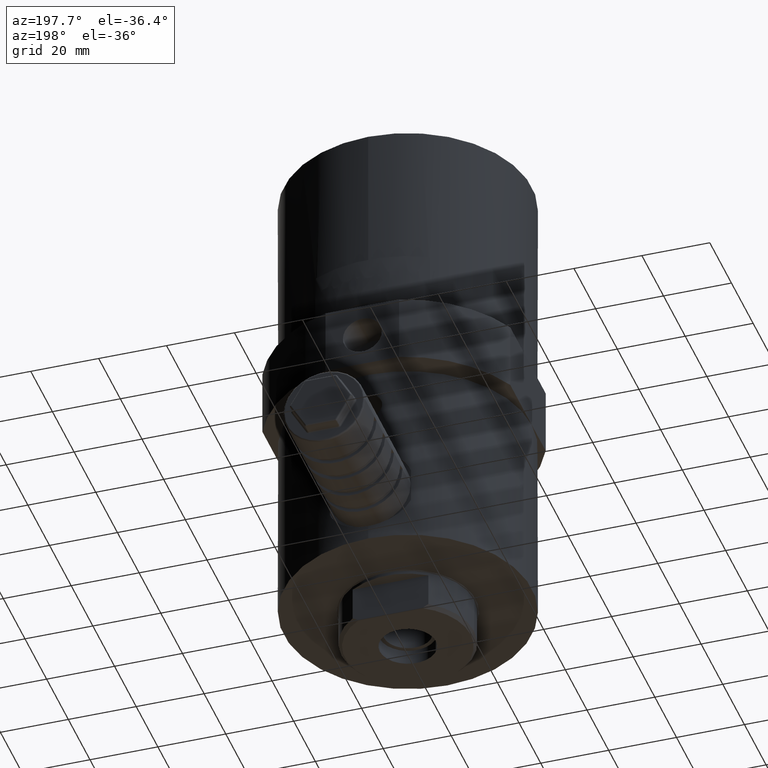
[diagram: clean part render]
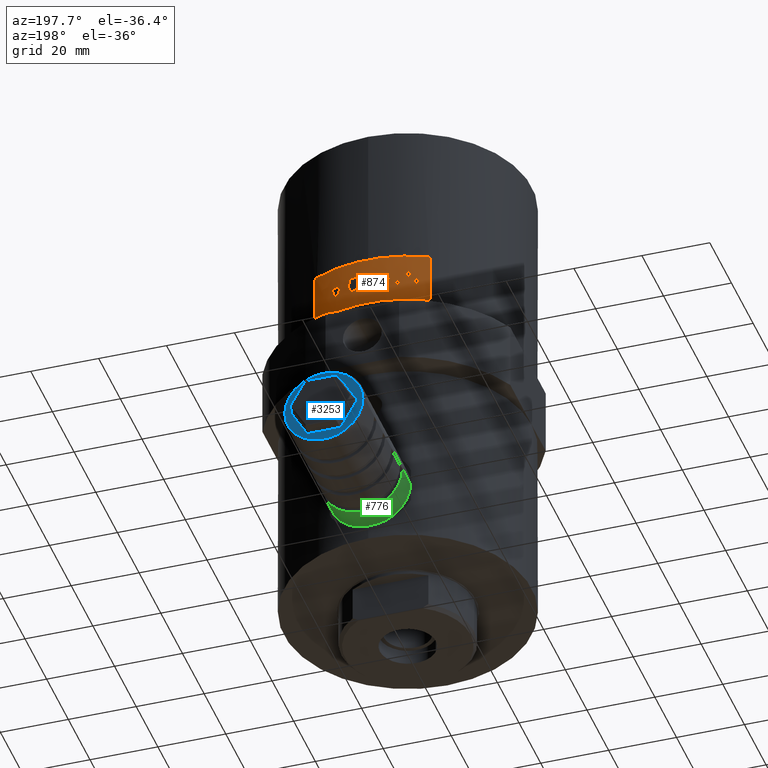
[diagram: same view with three faces highlighted in distinct colors, each labeled with its STEP entity id]
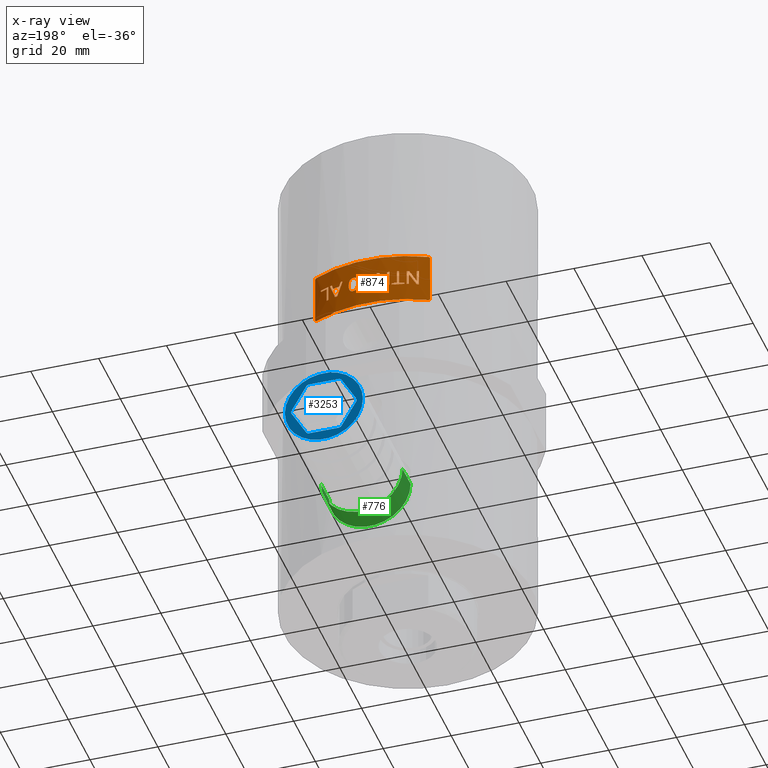
[diagram: x-ray of the same camera — body ghosted, the three highlighted faces saturated]
A machine part, auxiliary view with three faces highlighted in distinct colors.
The next image is the same camera in x-ray (body ghosted, the three faces saturated) — at least one of them is partly hidden behind the body in this view.
Their STEP definitions:

[orange] entity #874 — the highlighted cylindrical surface (partial cylindrical patch) has radius 36.7 mm, axis along (0, -0, 1).
#1 = VERTEX_POINT ( 'NONE', #3543 ) ;
#2 = VECTOR ( 'NONE', #5337, 1000.000000000000000 ) ;
#4 = AXIS2_PLACEMENT_3D ( 'NONE', #5926, #3881, #6430 ) ;
#21 = EDGE_LOOP ( 'NONE', ( #1598, #1145, #4508, #1777, #75, #1606, #753, #6184 ) ) ;
#22 = CARTESIAN_POINT ( 'NONE',  ( 3.312469536542303600, 36.55020676231123400, -48.81348904716865900 ) ) ;
#42 = CARTESIAN_POINT ( 'NONE',  ( 3.027282756368765000, 36.57493115675378400, -49.84408634478506900 ) ) ;
#45 = B_SPLINE_CURVE_WITH_KNOTS ( 'NONE', 3,
 ( #3162, #1112, #2598, #134 ),
 .UNSPECIFIED., .F., .F.,
 ( 4, 4 ),
 ( 0.0000000000000000000, 1.000000000000000000 ),
 .UNSPECIFIED. ) ;
#49 = CARTESIAN_POINT ( 'NONE',  ( 11.23952372282016100, 34.93655830908609500, -48.25000000000000000 ) ) ;
#51 = CARTESIAN_POINT ( 'NONE',  ( -8.798086758897740700, 35.62981433270340400, -48.25000000000000000 ) ) ;
#59 = DIRECTION ( 'NONE',  ( -1.636901731718545100E-032, 1.224606353822380000E-016, -1.000000000000000000 ) ) ;
#75 = ORIENTED_EDGE ( 'NONE', *, *, #627, .T. ) ;
#84 = CARTESIAN_POINT ( 'NONE',  ( -0.6922666334969970200, 36.69347035792819900, -49.92307692307690600 ) ) ;
#103 = EDGE_CURVE ( 'NONE', #1261, #6345, #3175, .T. ) ;
#113 = CARTESIAN_POINT ( 'NONE',  ( 5.849594017401270400, 36.23081906137981900, -50.09348966060356600 ) ) ;
#120 = CARTESIAN_POINT ( 'NONE',  ( 0.7309473985351994100, 36.69961856590381900, -51.76923076923076600 ) ) ;
#131 = CARTESIAN_POINT ( 'NONE',  ( 4.744140827082293100, 36.39212987971098600, -48.22061121103251200 ) ) ;
#133 = ORIENTED_EDGE ( 'NONE', *, *, #5621, .T. ) ;
#134 = CARTESIAN_POINT ( 'NONE',  ( -4.807060905269469900, 36.38381735680080500, -50.46664663461540100 ) ) ;
#135 = EDGE_CURVE ( 'NONE', #1477, #657, #6380, .T. ) ;
#139 = DIRECTION ( 'NONE',  ( -0.3122338093820792900, 0.9500052885530455600, 1.890706785805783000E-016 ) ) ;
#147 = VECTOR ( 'NONE', #1972, 1000.000000000000000 ) ;
#169 = CARTESIAN_POINT ( 'NONE',  ( 4.431467814945165200, 36.43147118913970700, -48.19230769230770100 ) ) ;
#186 = CARTESIAN_POINT ( 'NONE',  ( 3.392353246127980600, 36.54288207573073800, -52.24455439335124400 ) ) ;
#194 = CARTESIAN_POINT ( 'NONE',  ( 3.677902274848399600, 36.51526699771518000, -48.40226034668564400 ) ) ;
#196 = DIRECTION ( 'NONE',  ( 0.3062540523929193600, 0.9519498176862658500, 1.890706785805783500E-016 ) ) ;
#203 = CARTESIAN_POINT ( 'NONE',  ( 5.208342436694259400, 36.32858703271725200, -52.51980648239406000 ) ) ;
#207 = CARTESIAN_POINT ( 'NONE',  ( 3.846923506814189200, 36.49782706865673300, -52.63233987730916400 ) ) ;
#221 = B_SPLINE_CURVE_WITH_KNOTS ( 'NONE', 3,
 ( #2947, #5407, #3466, #854, #922, #1871 ),
 .UNSPECIFIED., .F., .F.,
 ( 4, 2, 4 ),
 ( 0.0000000000000000000, 0.0003905471345739655600, 0.0007810942691479311300 ),
 .UNSPECIFIED. ) ;
#228 = VERTEX_POINT ( 'NONE', #3743 ) ;
#231 = CARTESIAN_POINT ( 'NONE',  ( 4.870379404777001900, 36.37545230812026600, -52.68695778615818200 ) ) ;
#244 = CARTESIAN_POINT ( 'NONE',  ( 4.267118910758576100, 36.45109430984769000, -48.20014227914045800 ) ) ;
#252 = CARTESIAN_POINT ( 'NONE',  ( 3.942567140170517800, 36.48763883109917600, -52.67235541093106100 ) ) ;
#274 = CARTESIAN_POINT ( 'NONE',  ( 4.601061964842811500, 36.41044204842350500, -52.74116162820642700 ) ) ;
#276 = CARTESIAN_POINT ( 'NONE',  ( 3.535114528611234400, 36.52934527757261700, -52.41481733473629800 ) ) ;
#291 = VECTOR ( 'NONE', #2668, 1000.000000000000000 ) ;
#294 = CARTESIAN_POINT ( 'NONE',  ( 4.615312015284042800, 36.40863775224198700, -52.73973451670359200 ) ) ;
#301 = CARTESIAN_POINT ( 'NONE',  ( 16.92945609572494800, 32.56199496810550200, -43.50000000000000000 ) ) ;
#306 = VECTOR ( 'NONE', #4916, 1000.000000000000000 ) ;
#316 = CIRCLE ( 'NONE', #4925, 36.70000000000001700 ) ;
#320 = CARTESIAN_POINT ( 'NONE',  ( 5.811930203025736900, 36.23688001219850500, -51.26257932525280100 ) ) ;
#325 = CARTESIAN_POINT ( 'NONE',  ( -16.92945609572494800, 32.56199496810550200, -58.00000000000000000 ) ) ;
#368 = CARTESIAN_POINT ( 'NONE',  ( 4.179982390076568200, 36.46123496456587500, -52.73280947867130000 ) ) ;
#371 = CARTESIAN_POINT ( 'NONE',  ( 12.92803240779330000, 34.34757601437189600, -48.76923076923080200 ) ) ;
#382 = VERTEX_POINT ( 'NONE', #5573 ) ;
#388 = CARTESIAN_POINT ( 'NONE',  ( 5.823468156396461200, 36.23502825086239200, -51.17795964313180700 ) ) ;
#389 = CARTESIAN_POINT ( 'NONE',  ( 4.257600350264473500, 36.45220272497398600, -52.74180648557701500 ) ) ;
#409 = CARTESIAN_POINT ( 'NONE',  ( 5.464361464860847800, 36.29093373033128200, -52.25413026753059100 ) ) ;
#411 = CIRCLE ( 'NONE', #2112, 36.69999999999999600 ) ;
#413 = VERTEX_POINT ( 'NONE', #5134 ) ;
#423 = CARTESIAN_POINT ( 'NONE',  ( -13.48647908445502000, 34.13216784654275000, -52.75000000000000000 ) ) ;
#428 = ORIENTED_EDGE ( 'NONE', *, *, #5493, .T. ) ;
#452 = ORIENTED_EDGE ( 'NONE', *, *, #5797, .T. ) ;
#462 = CARTESIAN_POINT ( 'NONE',  ( -14.10793978642925900, 33.88002412901285300, -48.25000000000000000 ) ) ;
#468 = EDGE_CURVE ( 'NONE', #2704, #1944, #3991, .T. ) ;
#471 = LINE ( 'NONE', #970, #2268 ) ;
#473 = CARTESIAN_POINT ( 'NONE',  ( 3.342914445083965600, 36.54743529251469200, -48.76056844370745600 ) ) ;
#479 = CARTESIAN_POINT ( 'NONE',  ( 2.421316878905964900, 36.62003856595369900, -49.34615384615380400 ) ) ;
#488 = VECTOR ( 'NONE', #3496, 1000.000000000000000 ) ;
#504 = CARTESIAN_POINT ( 'NONE',  ( 1.794272318261560200E-015, 1.179611963664229800E-013, -48.25000000000000000 ) ) ;
#506 = CARTESIAN_POINT ( 'NONE',  ( -16.48426095144189700, 32.78961940744014900, -58.00000000000000000 ) ) ;
#514 = VERTEX_POINT ( 'NONE', #2188 ) ;
#516 = CARTESIAN_POINT ( 'NONE',  ( 8.571628535681703900, 35.68537954885000100, -48.71153846153845300 ) ) ;
#524 = EDGE_CURVE ( 'NONE', #2704, #5531, #3010, .T. ) ;
#548 = EDGE_CURVE ( 'NONE', #1629, #3278, #5274, .T. ) ;
#551 = B_SPLINE_CURVE_WITH_KNOTS ( 'NONE', 3,
 ( #4627, #1132, #2142, #1589, #4177, #5131, #3659, #5675, #2656, #6172, #1153, #2792, #2186, #4260, #4771, #1284, #2230, #5738, #3246, #1243, #4749, #5781, #1756, #186, #1712, #1202, #5761, #1733, #276, #3817, #5297, #4727, #5276, #1690, #5235, #2767, #6303, #207, #6278, #3289, #252, #772, #749, #4285, #4795, #368, #389, #1356, #2299, #5394, #5893, #4397, #3924, #1810, #4910 ),
 .UNSPECIFIED., .F., .F.,
 ( 4, 1, 1, 1, 2, 2, 2, 2, 2, 1, 1, 2, 2, 1, 2, 2, 1, 2, 2, 2, 2, 1, 2, 2, 1, 2, 2, 2, 1, 1, 2, 2, 4 ),
 ( 0.0000000000000000000, 0.06250000000003685900, 0.09375000000005870300, 0.1093750000000657500, 0.1171875000000692900, 0.1250000000000728300, 0.2500000000000672800, 0.3750000000000617300, 0.4375000000000621700, 0.4687500000000655000, 0.4843750000000672800, 0.4921875000000682800, 0.5000000000000692800, 0.5625000000000637300, 0.5937500000000610600, 0.6250000000000584000, 0.6562500000000557300, 0.6718750000000540700, 0.6875000000000524000, 0.7187500000000439600, 0.7500000000000355300, 0.7812500000000270900, 0.7968750000000245400, 0.8125000000000219800, 0.8437500000000179900, 0.8593750000000167600, 0.8750000000000155400, 0.9375000000000102100, 0.9531250000000086600, 0.9609375000000081000, 0.9648437500000073300, 0.9687500000000065500, 1.000000000000000000 ),
 .UNSPECIFIED. ) ;
#580 = DIRECTION ( 'NONE',  ( 1.636901731718545100E-032, -1.224606353822380000E-016, 1.000000000000000000 ) ) ;
#592 = EDGE_CURVE ( 'NONE', #4143, #4494, #4602, .T. ) ;
#606 = CARTESIAN_POINT ( 'NONE',  ( 5.851477479318236700, 36.23051492828474100, -50.12991425885210400 ) ) ;
#609 = VECTOR ( 'NONE', #3709, 1000.000000000000000 ) ;
#610 = VERTEX_POINT ( 'NONE', #2934 ) ;
#616 = DIRECTION ( 'NONE',  ( 1.636901731718545100E-032, -1.224606353822380000E-016, 1.000000000000000000 ) ) ;
#627 = EDGE_CURVE ( 'NONE', #1477, #610, #4104, .T. ) ;
#628 = CARTESIAN_POINT ( 'NONE',  ( 5.102205260557992600, 36.34363923883615400, -48.35258504322065000 ) ) ;
#649 = CARTESIAN_POINT ( 'NONE',  ( 5.045628842631367100, 36.35155099296044100, -48.32243006793018500 ) ) ;
#657 = VERTEX_POINT ( 'NONE', #2911 ) ;
#675 = CARTESIAN_POINT ( 'NONE',  ( 16.60224692356134200, 32.73030455145298800, -42.99999999999999300 ) ) ;
#682 = DIRECTION ( 'NONE',  ( 1.636901731718545100E-032, -1.224606353822380000E-016, 1.000000000000000000 ) ) ;
#687 = CARTESIAN_POINT ( 'NONE',  ( 5.749487773455626000, 36.24683976768994900, -49.35965174606715100 ) ) ;
#710 = CARTESIAN_POINT ( 'NONE',  ( 5.361469717544235200, 36.30627245500755900, -52.38364855132465400 ) ) ;
#712 = DIRECTION ( 'NONE',  ( 1.636901731718545100E-032, -1.224606353822380000E-016, 1.000000000000000000 ) ) ;
#718 = CARTESIAN_POINT ( 'NONE',  ( 3.557114792043465400, 36.52720983887620300, -48.49643264782368100 ) ) ;
#719 = ORIENTED_EDGE ( 'NONE', *, *, #1505, .F. ) ;
#720 = ORIENTED_EDGE ( 'NONE', *, *, #5836, .T. ) ;
#722 = CARTESIAN_POINT ( 'NONE',  ( 1.794272318261560200E-015, 1.179611963664229800E-013, -48.25000000000000000 ) ) ;
#732 = CARTESIAN_POINT ( 'NONE',  ( 11.31512269579085300, 34.91722614437723800, -49.74999999999999300 ) ) ;
#736 = CARTESIAN_POINT ( 'NONE',  ( -8.798086758897740700, 35.62981433270340400, -48.25000000000000000 ) ) ;
#740 = CARTESIAN_POINT ( 'NONE',  ( 4.299079937715760000, 36.44733092003691900, -48.19783822486884600 ) ) ;
#742 = EDGE_CURVE ( 'NONE', #5338, #3623, #1832, .T. ) ;
#749 = CARTESIAN_POINT ( 'NONE',  ( 4.021551999944020600, 36.47899920482067400, -52.69637802947263300 ) ) ;
#752 = CARTESIAN_POINT ( 'NONE',  ( 16.48426095144189700, 32.78961940744014900, -58.00000000000000000 ) ) ;
#753 = ORIENTED_EDGE ( 'NONE', *, *, #5751, .T. ) ;
#768 = CARTESIAN_POINT ( 'NONE',  ( 4.609709706243654300, 36.40934748655307400, -52.74031066981727600 ) ) ;
#772 = CARTESIAN_POINT ( 'NONE',  ( 3.989282186879451200, 36.48254227856121900, -52.68694674681728400 ) ) ;
#774 = DIRECTION ( 'NONE',  ( 1.636901731718545100E-032, -1.224606353822380000E-016, 1.000000000000000000 ) ) ;
#813 = ORIENTED_EDGE ( 'NONE', *, *, #3904, .T. ) ;
#821 = DIRECTION ( 'NONE',  ( 1.000000000000000000, 0.0000000000000000000, 0.0000000000000000000 ) ) ;
#830 = CARTESIAN_POINT ( 'NONE',  ( -3.785936039300183100, 36.50958189520250800, -51.49639423076923400 ) ) ;
#831 = CARTESIAN_POINT ( 'NONE',  ( 1.794272318261560200E-015, 1.179611963664229800E-013, -48.25000000000000000 ) ) ;
#835 = DIRECTION ( 'NONE',  ( 1.636901731718545100E-032, -1.224606353822380000E-016, 1.000000000000000000 ) ) ;
#838 = EDGE_CURVE ( 'NONE', #3588, #1311, #5736, .T. ) ;
#854 = CARTESIAN_POINT ( 'NONE',  ( -16.71754073715638400, 32.67142985207253500, -43.05432693595607000 ) ) ;
#874 = ADVANCED_FACE ( 'NONE', ( #918, #2736, #5585, #5576, #4311, #6432, #3787, #2904 ), #1704, .T. ) ;
#880 = EDGE_CURVE ( 'NONE', #5228, #5105, #3933, .T. ) ;
#881 = CARTESIAN_POINT ( 'NONE',  ( 5.612332402770335600, 36.26832963255010600, -51.97296191486029200 ) ) ;
#903 = ORIENTED_EDGE ( 'NONE', *, *, #5367, .T. ) ;
#918 = FACE_BOUND ( 'NONE', #21, .T. ) ;
#922 = CARTESIAN_POINT ( 'NONE',  ( -16.60224701021525500, 32.73030450788962800, -43.00000000000000000 ) ) ;
#944 = CARTESIAN_POINT ( 'NONE',  ( 3.432176782973954700, 36.53915930245829500, -48.62590144230769300 ) ) ;
#945 = ORIENTED_EDGE ( 'NONE', *, *, #3526, .T. ) ;
#948 = CARTESIAN_POINT ( 'NONE',  ( 2.421316878905955200, 36.62003856595364900, -49.92307692307690600 ) ) ;
#950 = DIRECTION ( 'NONE',  ( 0.03928982154035881600, 0.9992278568591483900, 1.890706785805785000E-016 ) ) ;
#963 = EDGE_CURVE ( 'NONE', #1261, #5570, #2430, .T. ) ;
#967 = CARTESIAN_POINT ( 'NONE',  ( 7.748635888705409900, 35.87267263341660600, -48.25000000000000000 ) ) ;
#970 = CARTESIAN_POINT ( 'NONE',  ( 1.268977773947234100, 36.67805468409190400, -48.25000000000000000 ) ) ;
#1005 = LINE ( 'NONE', #51, #3714 ) ;
#1025 = LINE ( 'NONE', #2510, #488 ) ;
#1036 = VERTEX_POINT ( 'NONE', #3373 ) ;
#1058 = EDGE_CURVE ( 'NONE', #3773, #4073, #6049, .T. ) ;
#1074 = VECTOR ( 'NONE', #5307, 1000.000000000000000 ) ;
#1079 = VERTEX_POINT ( 'NONE', #5475 ) ;
#1081 = ORIENTED_EDGE ( 'NONE', *, *, #1171, .F. ) ;
#1091 = CARTESIAN_POINT ( 'NONE',  ( -6.087123779939330100, 36.19166926362620300, -52.75000000000000000 ) ) ;
#1093 = CARTESIAN_POINT ( 'NONE',  ( 1.794272318261560200E-015, 1.179611963664229800E-013, -48.25000000000000000 ) ) ;
#1100 = DIRECTION ( 'NONE',  ( 1.636901731718545100E-032, -1.224606353822380000E-016, 1.000000000000000000 ) ) ;
#1103 = EDGE_CURVE ( 'NONE', #1258, #1889, #5731, .T. ) ;
#1104 = B_SPLINE_CURVE_WITH_KNOTS ( 'NONE', 3,
 ( #84, #3124, #120, #4649 ),
 .UNSPECIFIED., .F., .F.,
 ( 4, 4 ),
 ( 0.0000000000000000000, 1.000000000000000000 ),
 .UNSPECIFIED. ) ;
#1107 = CARTESIAN_POINT ( 'NONE',  ( 5.667111473058124500, 36.25981213821210500, -49.08709621650768900 ) ) ;
#1112 = CARTESIAN_POINT ( 'NONE',  ( -3.737265940833675700, 36.51319087399592400, -48.98888221153846000 ) ) ;
#1130 = CARTESIAN_POINT ( 'NONE',  ( 4.682458907246847000, 36.40011633147053500, -48.20931162397490500 ) ) ;
#1132 = CARTESIAN_POINT ( 'NONE',  ( 2.997374215518908700, 36.57739395207858000, -50.54862297583081000 ) ) ;
#1145 = ORIENTED_EDGE ( 'NONE', *, *, #5919, .T. ) ;
#1149 = CARTESIAN_POINT ( 'NONE',  ( 5.826398016705400800, 36.23455680930077000, -49.80632922304612700 ) ) ;
#1153 = CARTESIAN_POINT ( 'NONE',  ( 3.059878552671777100, 36.57222216728651900, -51.35865069301624400 ) ) ;
#1164 = CARTESIAN_POINT ( 'NONE',  ( 3.798472800952396300, 36.50292152984194200, -48.33033274771354800 ) ) ;
#1171 = EDGE_CURVE ( 'NONE', #3349, #6345, #5505, .T. ) ;
#1172 = CARTESIAN_POINT ( 'NONE',  ( 5.849525859530952900, 36.23083006623726700, -50.09223757342839200 ) ) ;
#1179 = CARTESIAN_POINT ( 'NONE',  ( -12.14179710546977700, 34.64077603940354100, -50.51141826923075900 ) ) ;
#1192 = CARTESIAN_POINT ( 'NONE',  ( 16.48426095144189700, 32.78961940744014900, -43.00000000000000000 ) ) ;
#1199 = CARTESIAN_POINT ( 'NONE',  ( 5.856863982309105800, 36.22964462387059800, -50.27960410046100000 ) ) ;
#1202 = CARTESIAN_POINT ( 'NONE',  ( 3.454715898226861500, 36.53704083144949500, -52.32677564395653700 ) ) ;
#1234 = CARTESIAN_POINT ( 'NONE',  ( -4.777006149018425200, 36.39433801343985000, -51.36778846153845300 ) ) ;
#1239 = DIRECTION ( 'NONE',  ( 1.636901731718545100E-032, -1.224606353822380000E-016, 1.000000000000000000 ) ) ;
#1243 = CARTESIAN_POINT ( 'NONE',  ( 3.233406678752199800, 36.55728509117218300, -51.96046605439742200 ) ) ;
#1247 = ORIENTED_EDGE ( 'NONE', *, *, #4180, .T. ) ;
#1256 = EDGE_CURVE ( 'NONE', #4073, #2808, #1005, .T. ) ;
#1258 = VERTEX_POINT ( 'NONE', #948 ) ;
#1261 = VERTEX_POINT ( 'NONE', #3043 ) ;
#1269 = AXIS2_PLACEMENT_3D ( 'NONE', #2175, #682, #196 ) ;
#1279 = LINE ( 'NONE', #5118, #5625 ) ;
#1282 = CARTESIAN_POINT ( 'NONE',  ( 4.745150440483257600, 36.39195686833242900, -52.71920307213021300 ) ) ;
#1284 = CARTESIAN_POINT ( 'NONE',  ( 3.196324293166585000, 36.56054892723997100, -51.87057732669204300 ) ) ;
#1292 = CARTESIAN_POINT ( 'NONE',  ( 1.794272318261560200E-015, 1.179611963664229800E-013, -52.23076923076919800 ) ) ;
#1308 = EDGE_CURVE ( 'NONE', #3287, #6291, #471, .T. ) ;
#1311 = VERTEX_POINT ( 'NONE', #3692 ) ;
#1313 = LINE ( 'NONE', #3190, #609 ) ;
#1321 = CARTESIAN_POINT ( 'NONE',  ( -6.768718829046620500, 36.07040955427754600, -52.75000000000000000 ) ) ;
#1329 = CARTESIAN_POINT ( 'NONE',  ( 5.849466325207803400, 36.23083967807001900, -50.86035655165066800 ) ) ;
#1349 = VERTEX_POINT ( 'NONE', #6138 ) ;
#1356 = CARTESIAN_POINT ( 'NONE',  ( 4.281064133407309000, 36.44945721932963800, -52.74410243867313100 ) ) ;
#1382 = CARTESIAN_POINT ( 'NONE',  ( 16.71754073715638700, 32.67142985207254200, -57.94567306404393000 ) ) ;
#1383 = EDGE_CURVE ( 'NONE', #4269, #1889, #5189, .T. ) ;
#1384 = DIRECTION ( 'NONE',  ( 1.636901731718545100E-032, -1.224606353822380000E-016, 1.000000000000000000 ) ) ;
#1396 = CARTESIAN_POINT ( 'NONE',  ( 1.268977773947234100, 36.67805468409190400, -48.25000000000000000 ) ) ;
#1398 = CARTESIAN_POINT ( 'NONE',  ( 5.423040150985139400, 36.29711703907328500, -52.30955886648792600 ) ) ;
#1401 = CARTESIAN_POINT ( 'NONE',  ( 1.794272318261560200E-015, 1.179611963664229800E-013, -52.23076923076919800 ) ) ;
#1403 = EDGE_CURVE ( 'NONE', #514, #5074, #3952, .T. ) ;
#1419 = CARTESIAN_POINT ( 'NONE',  ( 5.833112325720756900, 36.23347698199297900, -51.09012992320484200 ) ) ;
#1433 = B_SPLINE_CURVE_WITH_KNOTS ( 'NONE', 3,
 ( #1192, #675, #3741, #4135, #6349, #5880 ),
 .UNSPECIFIED., .F., .F.,
 ( 4, 2, 4 ),
 ( 0.0000000000000000000, 0.0003905472237268326200, 0.0007810944474536652400 ),
 .UNSPECIFIED. ) ;
#1435 = VERTEX_POINT ( 'NONE', #6264 ) ;
#1450 = EDGE_CURVE ( 'NONE', #228, #3126, #4785, .T. ) ;
#1463 = DIRECTION ( 'NONE',  ( 1.636901731718545100E-032, -1.224606353822380000E-016, 1.000000000000000000 ) ) ;
#1469 = EDGE_CURVE ( 'NONE', #1, #2556, #1313, .T. ) ;
#1473 = ORIENTED_EDGE ( 'NONE', *, *, #4033, .T. ) ;
#1474 = CARTESIAN_POINT ( 'NONE',  ( 3.222344389295099800, 36.55826190047463300, -49.00768089677090700 ) ) ;
#1477 = VERTEX_POINT ( 'NONE', #5308 ) ;
#1483 = LINE ( 'NONE', #462, #147 ) ;
#1498 = CARTESIAN_POINT ( 'NONE',  ( 3.143973805694952900, 36.56509550510871500, -49.22555548800167500 ) ) ;
#1501 = CARTESIAN_POINT ( 'NONE',  ( -0.6922666334970131200, 36.69347035792819900, -49.34615384615380400 ) ) ;
#1505 = EDGE_CURVE ( 'NONE', #4143, #2318, #5807, .T. ) ;
#1507 = CARTESIAN_POINT ( 'NONE',  ( -16.92945609572494800, 32.56199496810550200, -57.63205670154497500 ) ) ;
#1508 = ORIENTED_EDGE ( 'NONE', *, *, #1256, .T. ) ;
#1509 = CARTESIAN_POINT ( 'NONE',  ( -5.242915830147023100, 36.32423725897720600, -50.02734375000000000 ) ) ;
#1529 = CARTESIAN_POINT ( 'NONE',  ( 12.92803240779330000, 34.34757601437189600, -52.75000000000000000 ) ) ;
#1556 = CARTESIAN_POINT ( 'NONE',  ( 3.379366477999707500, 36.54408184911274300, -48.70352260006541200 ) ) ;
#1581 = AXIS2_PLACEMENT_3D ( 'NONE', #1093, #3617, #3661 ) ;
#1589 = CARTESIAN_POINT ( 'NONE',  ( 3.002551138460977800, 36.57696937674872800, -50.76041099249612600 ) ) ;
#1594 = CARTESIAN_POINT ( 'NONE',  ( -13.52000737104346100, 34.11890093023129800, -48.25000000000000000 ) ) ;
#1596 = EDGE_CURVE ( 'NONE', #3377, #5246, #6193, .T. ) ;
#1598 = ORIENTED_EDGE ( 'NONE', *, *, #5692, .T. ) ;
#1602 = CARTESIAN_POINT ( 'NONE',  ( 5.502051363567281900, 36.28523775548601500, -48.74652385458482200 ) ) ;
#1606 = ORIENTED_EDGE ( 'NONE', *, *, #4738, .T. ) ;
#1625 = CARTESIAN_POINT ( 'NONE',  ( 4.542137007455365500, 36.41783913848682600, -48.19548387553254500 ) ) ;
#1629 = VERTEX_POINT ( 'NONE', #1321 ) ;
#1644 = CARTESIAN_POINT ( 'NONE',  ( 4.473609548434758700, 36.42634513384931000, -48.19295445578693200 ) ) ;
#1650 = CARTESIAN_POINT ( 'NONE',  ( 1.794272318261560200E-015, 1.179611963664229800E-013, -58.00000000000000000 ) ) ;
#1654 = CARTESIAN_POINT ( 'NONE',  ( 3.432176782973954700, 36.53915930245829500, -48.62590144230769300 ) ) ;
#1656 = ORIENTED_EDGE ( 'NONE', *, *, #4855, .T. ) ;
#1665 = CARTESIAN_POINT ( 'NONE',  ( 5.744864610169633700, 36.24757281285933200, -49.34081421277730300 ) ) ;
#1683 = DIRECTION ( 'NONE',  ( -0.3844125282405794200, 0.9231614204090667900, 1.890706785805783700E-016 ) ) ;
#1685 = CARTESIAN_POINT ( 'NONE',  ( 5.820265281267114500, 36.23554219219117600, -49.75598204627429100 ) ) ;
#1690 = CARTESIAN_POINT ( 'NONE',  ( 3.681271953175644800, 36.51491446772625700, -52.53681385562030200 ) ) ;
#1697 = CARTESIAN_POINT ( 'NONE',  ( -8.180692363505651000, 35.77661628010239500, -52.23076923076919800 ) ) ;
#1704 = CYLINDRICAL_SURFACE ( 'NONE', #2128, 36.70000000000000300 ) ;
#1705 = VERTEX_POINT ( 'NONE', #4339 ) ;
#1710 = CARTESIAN_POINT ( 'NONE',  ( 5.412149985971963100, 36.29874287439730600, -52.32355982760977000 ) ) ;
#1712 = CARTESIAN_POINT ( 'NONE',  ( 3.414168390070655000, 36.54085205438853000, -52.27467437828526200 ) ) ;
#1725 = LINE ( 'NONE', #1765, #3739 ) ;
#1733 = CARTESIAN_POINT ( 'NONE',  ( 3.515093998673757300, 36.53127721992488800, -52.39464337119622400 ) ) ;
#1743 = DIRECTION ( 'NONE',  ( 0.2584508940464463900, 0.9660243968795987300, 1.890706785805783500E-016 ) ) ;
#1748 = DIRECTION ( 'NONE',  ( -0.3131670372343816600, 0.9496980608539954400, 1.890706785805785000E-016 ) ) ;
#1751 = CARTESIAN_POINT ( 'NONE',  ( 1.794272318261560200E-015, 1.179611963664229800E-013, -52.75000000000000000 ) ) ;
#1756 = CARTESIAN_POINT ( 'NONE',  ( 3.358383483366503600, 36.54601963724542200, -52.19458378827786800 ) ) ;
#1759 = CARTESIAN_POINT ( 'NONE',  ( 16.92945609572494800, 32.56199496810550900, -57.63205672325484800 ) ) ;
#1765 = CARTESIAN_POINT ( 'NONE',  ( -6.768718829046620500, 36.07040955427754600, -52.75000000000000000 ) ) ;
#1769 = CARTESIAN_POINT ( 'NONE',  ( -10.19118242320229900, 35.25662775730290100, -52.23076923076919800 ) ) ;
#1777 = ORIENTED_EDGE ( 'NONE', *, *, #135, .F. ) ;
#1779 = CARTESIAN_POINT ( 'NONE',  ( 4.961487666074728700, 36.36316130487946900, -52.65550949255080600 ) ) ;
#1780 = AXIS2_PLACEMENT_3D ( 'NONE', #5709, #4174, #1683 ) ;
#1782 = B_SPLINE_CURVE_WITH_KNOTS ( 'NONE', 3,
 ( #5069, #4519, #5046, #1556, #6491, #6072, #5549, #3509, #473, #3082, #22, #3035, #3992, #4495, #1474, #2541, #5508, #2498, #1498, #6010, #2029, #3017, #6511, #6054, #3531, #3055, #42, #3578, #5176, #3123, #4156, #6107, #2657, #4130, #4115, #6173, #2106, #2071, #4666, #3685 ),
 .UNSPECIFIED., .F., .F.,
 ( 4, 1, 1, 2, 2, 2, 2, 1, 1, 2, 2, 1, 1, 1, 2, 2, 1, 1, 2, 2, 1, 1, 1, 2, 2, 4 ),
 ( 0.0000000000000000000, 0.03125000000003722700, 0.04687500000005136200, 0.05468750000005303400, 0.06250000000005469200, 0.09375000000003581900, 0.1250000000000169300, 0.1874999999999896200, 0.2187499999999758500, 0.2343749999999690500, 0.2499999999999622800, 0.3749999999999611400, 0.4374999999999607000, 0.4687499999999654700, 0.4843749999999679100, 0.4999999999999703000, 0.6249999999999893400, 0.6874999999999987800, 0.7187500000000034400, 0.7500000000000081000, 0.8125000000000061100, 0.8437500000000050000, 0.8593750000000045500, 0.8671875000000043300, 0.8750000000000041100, 1.000000000000000000 ),
 .UNSPECIFIED. ) ;
#1786 = ORIENTED_EDGE ( 'NONE', *, *, #3061, .T. ) ;
#1805 = CARTESIAN_POINT ( 'NONE',  ( 5.859432088941960400, 36.22922929893879700, -50.46935096153840300 ) ) ;
#1810 = CARTESIAN_POINT ( 'NONE',  ( 4.389289302841878500, 36.43660171812373200, -52.74933779561822400 ) ) ;
#1814 = EDGE_LOOP ( 'NONE', ( #3150, #3648, #452, #3875, #4396 ) ) ;
#1823 = CIRCLE ( 'NONE', #3738, 36.70000000000002400 ) ;
#1829 = CARTESIAN_POINT ( 'NONE',  ( 5.779353261553775500, 36.24209357574861900, -51.44884580721016200 ) ) ;
#1832 = B_SPLINE_CURVE_WITH_KNOTS ( 'NONE', 3,
 ( #6102, #4054, #3632, #4108 ),
 .UNSPECIFIED., .F., .F.,
 ( 4, 4 ),
 ( 0.0000000000000000000, 1.000000000000000000 ),
 .UNSPECIFIED. ) ;
#1836 = DIRECTION ( 'NONE',  ( -1.636901731718545100E-032, 1.224606353822380000E-016, -1.000000000000000000 ) ) ;
#1842 = CARTESIAN_POINT ( 'NONE',  ( 16.92945609572494800, 32.56199496810550200, -58.00000000000000000 ) ) ;
#1845 = EDGE_CURVE ( 'NONE', #382, #3278, #4228, .T. ) ;
#1851 = CARTESIAN_POINT ( 'NONE',  ( 5.799725763990443800, 36.23883592222563300, -51.34003623399298300 ) ) ;
#1871 = CARTESIAN_POINT ( 'NONE',  ( -16.48426095144189700, 32.78961940744014900, -43.00000000000000000 ) ) ;
#1873 = B_SPLINE_CURVE_WITH_KNOTS ( 'NONE', 3,
 ( #5544, #3096, #2020, #6124 ),
 .UNSPECIFIED., .F., .F.,
 ( 4, 4 ),
 ( 0.0000000000000000000, 1.000000000000000000 ),
 .UNSPECIFIED. ) ;
#1881 = DIRECTION ( 'NONE',  ( -1.636901731718545100E-032, 1.224606353822380000E-016, -1.000000000000000000 ) ) ;
#1889 = VERTEX_POINT ( 'NONE', #6330 ) ;
#1895 = CARTESIAN_POINT ( 'NONE',  ( -4.408200901797880700, 36.43429380143655300, -50.86959134615380400 ) ) ;
#1897 = CARTESIAN_POINT ( 'NONE',  ( 5.848172127872867800, 36.23104860829884900, -50.88295583948563200 ) ) ;
#1925 = CARTESIAN_POINT ( 'NONE',  ( -5.025117869751991200, 36.35500748512608000, -50.24699519230768600 ) ) ;
#1944 = VERTEX_POINT ( 'NONE', #6261 ) ;
#1947 = CARTESIAN_POINT ( 'NONE',  ( 1.794272318261560200E-015, 1.179611963664229800E-013, -52.69230769230770800 ) ) ;
#1952 = DIRECTION ( 'NONE',  ( -0.1658616833770934500, 0.9861490262568416400, 1.890706785805783500E-016 ) ) ;
#1968 = DIRECTION ( 'NONE',  ( 1.636901731718545100E-032, -1.224606353822380000E-016, 1.000000000000000000 ) ) ;
#1972 = DIRECTION ( 'NONE',  ( -1.636901731718545100E-032, 1.224606353822380000E-016, -1.000000000000000000 ) ) ;
#1986 = CARTESIAN_POINT ( 'NONE',  ( 8.909829195334063800, 35.60701654096219200, -51.25000000000000000 ) ) ;
#1991 = VERTEX_POINT ( 'NONE', #4383 ) ;
#1994 = DIRECTION ( 'NONE',  ( 0.2111344928802564300, 0.9774570199840997300, 1.890706785805783700E-016 ) ) ;
#2003 = AXIS2_PLACEMENT_3D ( 'NONE', #4559, #4196, #2137 ) ;
#2013 = CARTESIAN_POINT ( 'NONE',  ( -16.48426095144189700, 32.78961940744014900, -43.00000000000000000 ) ) ;
#2020 = CARTESIAN_POINT ( 'NONE',  ( -12.85180682489627600, 34.38368309093803500, -50.48858173076922600 ) ) ;
#2029 = CARTESIAN_POINT ( 'NONE',  ( 3.092319459944001400, 36.56948994924957900, -49.43705836741990800 ) ) ;
#2062 = CIRCLE ( 'NONE', #5704, 36.69999999999998900 ) ;
#2071 = CARTESIAN_POINT ( 'NONE',  ( 2.999832739415614100, 36.57719243502402400, -50.28201346722875100 ) ) ;
#2083 = CARTESIAN_POINT ( 'NONE',  ( -8.180692363505651000, 35.77661628010239500, -52.23076923076919800 ) ) ;
#2106 = CARTESIAN_POINT ( 'NONE',  ( 3.001633947124346900, 36.57704462718086800, -50.22541481352181600 ) ) ;
#2111 = EDGE_CURVE ( 'NONE', #5074, #4544, #1782, .T. ) ;
#2112 = AXIS2_PLACEMENT_3D ( 'NONE', #3909, #1384, #4894 ) ;
#2123 = CARTESIAN_POINT ( 'NONE',  ( 5.254032523107715800, 36.32197356557762900, -48.46104536919924800 ) ) ;
#2128 = AXIS2_PLACEMENT_3D ( 'NONE', #5370, #4255, #6315 ) ;
#2131 = CARTESIAN_POINT ( 'NONE',  ( 4.400252296893209600, 36.43526819648136700, -48.19320467996735100 ) ) ;
#2137 = DIRECTION ( 'NONE',  ( -0.1658616833770934500, 0.9861490262568416400, 1.890706785805783500E-016 ) ) ;
#2139 = CARTESIAN_POINT ( 'NONE',  ( 4.505176904905027900, 36.42243579162359900, -48.19374707815926200 ) ) ;
#2142 = CARTESIAN_POINT ( 'NONE',  ( 2.999174609751721100, 36.57724643526074000, -50.65582562796256400 ) ) ;
#2145 = EDGE_CURVE ( 'NONE', #5246, #3287, #4074, .T. ) ;
#2162 = CARTESIAN_POINT ( 'NONE',  ( 5.765630099845696000, 36.24427653598465300, -49.42959318592944100 ) ) ;
#2167 = ORIENTED_EDGE ( 'NONE', *, *, #4252, .T. ) ;
#2171 = CARTESIAN_POINT ( 'NONE',  ( -2.421316878905935200, 36.62003856595369900, -48.25000000000000000 ) ) ;
#2175 = CARTESIAN_POINT ( 'NONE',  ( 1.794272318261560200E-015, 1.179611963664229800E-013, -48.25000000000000000 ) ) ;
#2182 = CARTESIAN_POINT ( 'NONE',  ( 5.325526029268510300, 36.31160441321694800, -48.52257609375865900 ) ) ;
#2186 = CARTESIAN_POINT ( 'NONE',  ( 3.130123937707865800, 36.56627646009200600, -51.66934744996456900 ) ) ;
#2188 = CARTESIAN_POINT ( 'NONE',  ( 4.431467814945165200, 36.43147118913970700, -48.19230769230770100 ) ) ;
#2190 = CARTESIAN_POINT ( 'NONE',  ( -4.408200901797880700, 36.43429380143655300, -50.86959134615380400 ) ) ;
#2191 = EDGE_CURVE ( 'NONE', #2553, #3021, #45, .T. ) ;
#2218 = CARTESIAN_POINT ( 'NONE',  ( 3.839667952092035800, 36.49861238265561500, -48.31014455990305100 ) ) ;
#2221 = VERTEX_POINT ( 'NONE', #5197 ) ;
#2224 = ORIENTED_EDGE ( 'NONE', *, *, #6497, .T. ) ;
#2230 = CARTESIAN_POINT ( 'NONE',  ( 3.216349031277105000, 36.55879043718101700, -51.92056415022993600 ) ) ;
#2232 = CARTESIAN_POINT ( 'NONE',  ( 1.794272318261560200E-015, 1.179611963664229800E-013, -52.75000000000000000 ) ) ;
#2235 = CARTESIAN_POINT ( 'NONE',  ( 1.268977773947242100, 36.67805468409190400, -49.34615384615380400 ) ) ;
#2252 = CARTESIAN_POINT ( 'NONE',  ( 4.431467814945165200, 36.43147118913970700, -52.75000000000000000 ) ) ;
#2257 = CARTESIAN_POINT ( 'NONE',  ( 16.88144886807581800, 32.58704007718285600, -57.76119085315902900 ) ) ;
#2267 = LINE ( 'NONE', #325, #5658 ) ;
#2268 = VECTOR ( 'NONE', #3565, 1000.000000000000000 ) ;
#2273 = DIRECTION ( 'NONE',  ( -0.09271276386393179100, 0.9956928961365098000, 1.890706785805783700E-016 ) ) ;
#2297 = CARTESIAN_POINT ( 'NONE',  ( 5.100849798196405200, 36.34380412832584300, -52.58629731153655500 ) ) ;
#2299 = CARTESIAN_POINT ( 'NONE',  ( 4.308750561944748400, 36.44619020678369000, -52.74607553991123900 ) ) ;
#2315 = CARTESIAN_POINT ( 'NONE',  ( -3.402558433806295300, 36.54192928821005600, -52.75000000000000000 ) ) ;
#2318 = VERTEX_POINT ( 'NONE', #301 ) ;
#2324 = AXIS2_PLACEMENT_3D ( 'NONE', #1947, #1968, #950 ) ;
#2342 = DIRECTION ( 'NONE',  ( 1.636901731718545100E-032, -1.224606353822380000E-016, 1.000000000000000000 ) ) ;
#2360 = CARTESIAN_POINT ( 'NONE',  ( -3.200556567178000300, 36.56017556933095100, -48.25000000000000000 ) ) ;
#2381 = ORIENTED_EDGE ( 'NONE', *, *, #3986, .T. ) ;
#2397 = CARTESIAN_POINT ( 'NONE',  ( 5.564796604720029900, 36.27565885943927500, -52.07743258415481300 ) ) ;
#2404 = CARTESIAN_POINT ( 'NONE',  ( 16.92945609572494800, 32.56199496810550200, -57.50000000000000000 ) ) ;
#2430 = CIRCLE ( 'NONE', #3837, 36.70000000000000300 ) ;
#2460 = VERTEX_POINT ( 'NONE', #3448 ) ;
#2469 = CARTESIAN_POINT ( 'NONE',  ( -4.807060905269469900, 36.38381735680080500, -50.46664663461540100 ) ) ;
#2481 = ORIENTED_EDGE ( 'NONE', *, *, #592, .T. ) ;
#2491 = ORIENTED_EDGE ( 'NONE', *, *, #2740, .T. ) ;
#2498 = CARTESIAN_POINT ( 'NONE',  ( 3.179832391383903700, 36.56199343647655600, -49.11667201129576200 ) ) ;
#2510 = CARTESIAN_POINT ( 'NONE',  ( 14.90283351816549900, 33.53797181002229900, -48.76923076923080200 ) ) ;
#2512 = ORIENTED_EDGE ( 'NONE', *, *, #3443, .T. ) ;
#2537 = CARTESIAN_POINT ( 'NONE',  ( -11.45898080432230000, 34.86519408989690300, -52.75000000000000000 ) ) ;
#2541 = CARTESIAN_POINT ( 'NONE',  ( 3.214240152396044400, 36.55897532466740800, -49.02791928426572800 ) ) ;
#2553 = VERTEX_POINT ( 'NONE', #2360 ) ;
#2556 = VERTEX_POINT ( 'NONE', #6376 ) ;
#2560 = ORIENTED_EDGE ( 'NONE', *, *, #468, .T. ) ;
#2572 = B_SPLINE_CURVE_WITH_KNOTS ( 'NONE', 3,
 ( #3222, #5213, #1199, #3136, #606, #5192, #2677, #113, #1172, #3657, #4127, #1149, #1685, #3697, #4680, #5631, #6191, #4215, #6125, #2162, #2652, #687, #2608, #1665, #5693, #3733, #1107, #4703, #3178, #5671, #3718, #1602, #5150, #3201, #2182, #2123, #3678, #5650, #628, #649, #2629, #6171, #6145, #4151, #131, #1130, #5712, #4660, #2700, #1625, #5173, #4175, #2139, #1644, #169 ),
 .UNSPECIFIED., .F., .F.,
 ( 4, 1, 1, 1, 1, 2, 2, 1, 1, 1, 1, 2, 2, 1, 1, 1, 2, 2, 1, 2, 2, 2, 2, 1, 2, 2, 2, 2, 2, 2, 1, 1, 2, 2, 4 ),
 ( 0.0000000000000000000, 0.06249999999994532200, 0.09374999999991456800, 0.1093749999998991500, 0.1171874999998913900, 0.1210937499998875300, 0.1249999999998836900, 0.1874999999998514500, 0.2187499999998320000, 0.2343749999998222000, 0.2421874999998173100, 0.2460937499998148700, 0.2499999999998124300, 0.3124999999997777900, 0.3437499999997605200, 0.3593749999997517000, 0.3671874999997509800, 0.3749999999997502600, 0.4374999999997764600, 0.4687499999997893900, 0.4999999999998023800, 0.5624999999998221400, 0.6249999999998420200, 0.6874999999998617800, 0.7187499999998716600, 0.7499999999998816500, 0.8124999999999054100, 0.8437499999999177300, 0.8749999999999300600, 0.9374999999999579200, 0.9531249999999642500, 0.9609374999999681400, 0.9648437499999704700, 0.9687499999999728000, 1.000000000000000000 ),
 .UNSPECIFIED. ) ;
#2574 = CARTESIAN_POINT ( 'NONE',  ( -5.460419584347359700, 36.29151165166429400, -48.25000000000000000 ) ) ;
#2587 = CARTESIAN_POINT ( 'NONE',  ( 2.421316878905955200, 36.62003856595364900, -49.92307692307690600 ) ) ;
#2588 = ORIENTED_EDGE ( 'NONE', *, *, #524, .F. ) ;
#2598 = CARTESIAN_POINT ( 'NONE',  ( -4.272940499098536000, 36.45438579930456100, -49.72776442307692000 ) ) ;
#2608 = CARTESIAN_POINT ( 'NONE',  ( 5.746181431890025900, 36.24736406628083100, -49.34612702589544100 ) ) ;
#2629 = CARTESIAN_POINT ( 'NONE',  ( 4.956092383950881700, 36.36382894834645200, -48.28409468100207400 ) ) ;
#2632 = CARTESIAN_POINT ( 'NONE',  ( 10.91421469095130800, 35.03996356988712800, -49.17307692307692700 ) ) ;
#2637 = DIRECTION ( 'NONE',  ( 1.000000000000000000, 0.0000000000000000000, 0.0000000000000000000 ) ) ;
#2651 = VERTEX_POINT ( 'NONE', #4937 ) ;
#2652 = CARTESIAN_POINT ( 'NONE',  ( 5.754409602112722200, 36.24605894759884000, -49.38016313332507000 ) ) ;
#2654 = VECTOR ( 'NONE', #3894, 1000.000000000000000 ) ;
#2656 = CARTESIAN_POINT ( 'NONE',  ( 3.013737333809976900, 36.57605003328537700, -50.97713244318369900 ) ) ;
#2657 = CARTESIAN_POINT ( 'NONE',  ( 3.004217444201348300, 36.57683254214990900, -50.15595217334726600 ) ) ;
#2668 = DIRECTION ( 'NONE',  ( 1.636901731718545100E-032, -1.224606353822380000E-016, 1.000000000000000000 ) ) ;
#2672 = CIRCLE ( 'NONE', #4224, 36.69999999999998900 ) ;
#2677 = CARTESIAN_POINT ( 'NONE',  ( 5.849917548045215000, 36.23076682472967700, -50.09938325421644100 ) ) ;
#2681 = CIRCLE ( 'NONE', #1269, 36.70000000000001700 ) ;
#2692 = CARTESIAN_POINT ( 'NONE',  ( 4.297021157498760700, 36.44757393069549100, -48.19796654064902000 ) ) ;
#2700 = CARTESIAN_POINT ( 'NONE',  ( 4.554061393840481000, 36.41635122859231900, -48.19617023885270200 ) ) ;
#2704 = VERTEX_POINT ( 'NONE', #423 ) ;
#2712 = CARTESIAN_POINT ( 'NONE',  ( 3.506016033163987800, 36.53215526522118500, -48.54444725905958800 ) ) ;
#2734 = CARTESIAN_POINT ( 'NONE',  ( -5.460419584347359700, 36.29151165166429400, -49.80769230769229200 ) ) ;
#2736 = FACE_BOUND ( 'NONE', #4144, .T. ) ;
#2740 = EDGE_CURVE ( 'NONE', #1944, #3092, #5792, .T. ) ;
#2755 = CARTESIAN_POINT ( 'NONE',  ( 3.544688582222469200, 36.52841632968076600, -48.50771250420112300 ) ) ;
#2758 = CARTESIAN_POINT ( 'NONE',  ( -4.090687538708290400, 36.47785496222234500, -52.05889423076923400 ) ) ;
#2767 = CARTESIAN_POINT ( 'NONE',  ( 3.776667936065856600, 36.50517984550394600, -52.59677593428302300 ) ) ;
#2789 = VERTEX_POINT ( 'NONE', #4590 ) ;
#2790 = CARTESIAN_POINT ( 'NONE',  ( 4.473435336524866000, 36.42636632471661100, -52.74875709005850400 ) ) ;
#2792 = CARTESIAN_POINT ( 'NONE',  ( 3.082858862503074200, 36.57030190358044300, -51.48356663741678600 ) ) ;
#2804 = AXIS2_PLACEMENT_3D ( 'NONE', #1401, #835, #5348 ) ;
#2808 = VERTEX_POINT ( 'NONE', #5108 ) ;
#2896 = ORIENTED_EDGE ( 'NONE', *, *, #4679, .T. ) ;
#2903 = CARTESIAN_POINT ( 'NONE',  ( 5.512158863597999700, 36.28371217311098500, -52.17929680169583400 ) ) ;
#2904 = FACE_BOUND ( 'NONE', #5172, .T. ) ;
#2911 = CARTESIAN_POINT ( 'NONE',  ( 9.485147811504600000, 35.45309536548139600, -52.75000000000000000 ) ) ;
#2925 = CARTESIAN_POINT ( 'NONE',  ( -3.161742047358892200, 36.56892491012190000, -52.12319711538461300 ) ) ;
#2929 = CARTESIAN_POINT ( 'NONE',  ( 5.601111860832867600, 36.27006422657891700, -51.99869304180030800 ) ) ;
#2934 = CARTESIAN_POINT ( 'NONE',  ( 11.87861738574715900, 34.72446470434115200, -48.25000000000000000 ) ) ;
#2936 = VERTEX_POINT ( 'NONE', #6024 ) ;
#2945 = VERTEX_POINT ( 'NONE', #4444 ) ;
#2947 = CARTESIAN_POINT ( 'NONE',  ( -16.92945609572494800, 32.56199496810550200, -43.50000000000000000 ) ) ;
#2949 = VECTOR ( 'NONE', #580, 1000.000000000000000 ) ;
#2962 = CARTESIAN_POINT ( 'NONE',  ( -14.10793978642925900, 33.88002412901285300, -52.75000000000000000 ) ) ;
#3010 = CIRCLE ( 'NONE', #3879, 36.70000000000001000 ) ;
#3016 = ORIENTED_EDGE ( 'NONE', *, *, #5858, .T. ) ;
#3017 = CARTESIAN_POINT ( 'NONE',  ( 3.085733170313899300, 36.57004587760683000, -49.46876997842133500 ) ) ;
#3021 = VERTEX_POINT ( 'NONE', #2469 ) ;
#3035 = CARTESIAN_POINT ( 'NONE',  ( 3.287687186791856200, 36.55244708845999200, -48.86055761148957500 ) ) ;
#3037 = VERTEX_POINT ( 'NONE', #2083 ) ;
#3043 = CARTESIAN_POINT ( 'NONE',  ( 12.92803240779330000, 34.34757601437189600, -52.75000000000000000 ) ) ;
#3047 = CARTESIAN_POINT ( 'NONE',  ( -4.807060905269469900, 36.38381735680080500, -50.46664663461540100 ) ) ;
#3055 = CARTESIAN_POINT ( 'NONE',  ( 3.043849908668677900, 36.57355814687599600, -49.70323684086101000 ) ) ;
#3061 = EDGE_CURVE ( 'NONE', #3564, #3428, #1873, .T. ) ;
#3079 = EDGE_LOOP ( 'NONE', ( #3016, #5143, #1247, #133, #719, #2481, #5147, #5504 ) ) ;
#3082 = CARTESIAN_POINT ( 'NONE',  ( 3.322656648193339700, 36.54928256814239500, -48.79512153952982300 ) ) ;
#3088 = DIRECTION ( 'NONE',  ( -1.636901731718545100E-032, 1.224606353822380000E-016, -1.000000000000000000 ) ) ;
#3092 = VERTEX_POINT ( 'NONE', #2537 ) ;
#3096 = CARTESIAN_POINT ( 'NONE',  ( -12.17582574774067300, 34.62883002532952800, -49.36929086538460600 ) ) ;
#3123 = CARTESIAN_POINT ( 'NONE',  ( 3.015746102428387100, 36.57588382503405500, -49.96945175920892300 ) ) ;
#3124 = CARTESIAN_POINT ( 'NONE',  ( 0.01914523154351800700, 36.70689200194382100, -50.84615384615384700 ) ) ;
#3126 = VERTEX_POINT ( 'NONE', #2574 ) ;
#3130 = CARTESIAN_POINT ( 'NONE',  ( 1.845375334101484900, 36.65357540372150400, -52.69230769230770800 ) ) ;
#3136 = CARTESIAN_POINT ( 'NONE',  ( 5.853481516366387400, 36.23019122640532400, -50.17597022446416600 ) ) ;
#3148 = CARTESIAN_POINT ( 'NONE',  ( 12.33219190006773800, 34.56598100647385500, -48.25000000000000000 ) ) ;
#3150 = ORIENTED_EDGE ( 'NONE', *, *, #1403, .T. ) ;
#3162 = CARTESIAN_POINT ( 'NONE',  ( -3.200556567178000300, 36.56017556933095100, -48.25000000000000000 ) ) ;
#3169 = ORIENTED_EDGE ( 'NONE', *, *, #1058, .T. ) ;
#3175 = LINE ( 'NONE', #1529, #5910 ) ;
#3178 = CARTESIAN_POINT ( 'NONE',  ( 5.633598687858011500, 36.26503461745770800, -49.00164584151671200 ) ) ;
#3188 = ORIENTED_EDGE ( 'NONE', *, *, #3614, .T. ) ;
#3190 = CARTESIAN_POINT ( 'NONE',  ( -5.460419584347359700, 36.29151165166429400, -52.75000000000000000 ) ) ;
#3201 = CARTESIAN_POINT ( 'NONE',  ( 5.389435014176280300, 36.30214269786228700, -48.59324006249451600 ) ) ;
#3212 = EDGE_CURVE ( 'NONE', #2221, #2789, #4611, .T. ) ;
#3213 = CARTESIAN_POINT ( 'NONE',  ( 3.531471130410248600, 36.52969640893913100, -48.52003452970561900 ) ) ;
#3222 = CARTESIAN_POINT ( 'NONE',  ( 5.859432088941960400, 36.22922929893879700, -50.46935096153840300 ) ) ;
#3223 = B_SPLINE_CURVE_WITH_KNOTS ( 'NONE', 3,
 ( #506, #5930, #6480, #4027, #1507, #3499 ),
 .UNSPECIFIED., .F., .F.,
 ( 4, 2, 4 ),
 ( 0.0000000000000000000, 0.0003905472237268152200, 0.0007810944474536304400 ),
 .UNSPECIFIED. ) ;
#3238 = ORIENTED_EDGE ( 'NONE', *, *, #838, .T. ) ;
#3243 = CARTESIAN_POINT ( 'NONE',  ( 5.126098377502607700, 36.34025154160421100, -52.57179014352796300 ) ) ;
#3246 = CARTESIAN_POINT ( 'NONE',  ( 3.230944881879662200, 36.55750270216904600, -51.95483283437054200 ) ) ;
#3258 = CARTESIAN_POINT ( 'NONE',  ( 3.587676550025173100, 36.52422676240156100, -48.47009721039821500 ) ) ;
#3260 = AXIS2_PLACEMENT_3D ( 'NONE', #4236, #6294, #3793 ) ;
#3266 = CARTESIAN_POINT ( 'NONE',  ( 4.510182296009555900, 36.42182402614044200, -52.74723105944679700 ) ) ;
#3278 = VERTEX_POINT ( 'NONE', #3399 ) ;
#3281 = AXIS2_PLACEMENT_3D ( 'NONE', #6502, #5952, #1994 ) ;
#3287 = VERTEX_POINT ( 'NONE', #1396 ) ;
#3289 = CARTESIAN_POINT ( 'NONE',  ( 3.900923430692637300, 36.49210125933759500, -52.65643083933525000 ) ) ;
#3291 = DIRECTION ( 'NONE',  ( 1.636901731718545100E-032, -1.224606353822380000E-016, 1.000000000000000000 ) ) ;
#3296 = ORIENTED_EDGE ( 'NONE', *, *, #1469, .T. ) ;
#3310 = CARTESIAN_POINT ( 'NONE',  ( 4.579173804447641800, 36.41320453145480900, -52.74305429881112400 ) ) ;
#3320 = EDGE_CURVE ( 'NONE', #5228, #5338, #6188, .T. ) ;
#3349 = VERTEX_POINT ( 'NONE', #5906 ) ;
#3352 = ORIENTED_EDGE ( 'NONE', *, *, #742, .T. ) ;
#3362 = CARTESIAN_POINT ( 'NONE',  ( 1.794272318261560200E-015, 1.179611963664229800E-013, -49.34615384615380400 ) ) ;
#3373 = CARTESIAN_POINT ( 'NONE',  ( 1.441936450531169800, 36.67166234673084800, -52.69230769230770800 ) ) ;
#3375 = CARTESIAN_POINT ( 'NONE',  ( 5.814423097040652500, 36.23648006367952900, -51.24508738721752400 ) ) ;
#3377 = VERTEX_POINT ( 'NONE', #3493 ) ;
#3384 = CARTESIAN_POINT ( 'NONE',  ( 1.794272318261560200E-015, 1.179611963664229800E-013, -43.00000000000000000 ) ) ;
#3399 = CARTESIAN_POINT ( 'NONE',  ( -10.19118242320229900, 35.25662775730290100, -52.75000000000000000 ) ) ;
#3401 = CARTESIAN_POINT ( 'NONE',  ( 5.756919125904818900, 36.24566435145452900, -51.54267066977070800 ) ) ;
#3428 = VERTEX_POINT ( 'NONE', #6080 ) ;
#3430 = CARTESIAN_POINT ( 'NONE',  ( 4.431467814945165200, 36.43147118913970700, -52.75000000000000000 ) ) ;
#3443 = EDGE_CURVE ( 'NONE', #5139, #4678, #1279, .T. ) ;
#3448 = CARTESIAN_POINT ( 'NONE',  ( 8.903067098884548600, 35.60372728005830100, -49.63461538461539400 ) ) ;
#3455 = CARTESIAN_POINT ( 'NONE',  ( 11.87861738574715900, 34.72446470434115200, -48.25000000000000000 ) ) ;
#3466 = CARTESIAN_POINT ( 'NONE',  ( -16.88144886807582200, 32.58704007718285600, -43.23880914684095700 ) ) ;
#3467 = ORIENTED_EDGE ( 'NONE', *, *, #6366, .T. ) ;
#3493 = CARTESIAN_POINT ( 'NONE',  ( 1.845375334101484900, 36.65357540372150400, -49.34615384615380400 ) ) ;
#3496 = DIRECTION ( 'NONE',  ( 1.636901731718545100E-032, -1.224606353822380000E-016, 1.000000000000000000 ) ) ;
#3499 = CARTESIAN_POINT ( 'NONE',  ( -16.92945609572494800, 32.56199496810550200, -57.50000000000000000 ) ) ;
#3509 = CARTESIAN_POINT ( 'NONE',  ( 3.353646600418636500, 36.54645241411278500, -48.74312654021521500 ) ) ;
#3514 = AXIS2_PLACEMENT_3D ( 'NONE', #5581, #3982, #4048 ) ;
#3518 = DIRECTION ( 'NONE',  ( -0.08720862580866529900, 0.9961900700090139400, 1.890706785805784200E-016 ) ) ;
#3526 = EDGE_CURVE ( 'NONE', #1258, #5085, #5388, .T. ) ;
#3531 = CARTESIAN_POINT ( 'NONE',  ( 3.062644608519780900, 36.57198957978963700, -49.58702187912427200 ) ) ;
#3543 = CARTESIAN_POINT ( 'NONE',  ( -5.460419584347359700, 36.29151165166429400, -52.75000000000000000 ) ) ;
#3564 = VERTEX_POINT ( 'NONE', #6115 ) ;
#3565 = DIRECTION ( 'NONE',  ( -1.636901731718545100E-032, 1.224606353822380000E-016, -1.000000000000000000 ) ) ;
#3577 = ORIENTED_EDGE ( 'NONE', *, *, #4622, .F. ) ;
#3578 = CARTESIAN_POINT ( 'NONE',  ( 3.021331222643869600, 36.57542291091219500, -49.90557871401637200 ) ) ;
#3588 = VERTEX_POINT ( 'NONE', #1594 ) ;
#3604 = ORIENTED_EDGE ( 'NONE', *, *, #3212, .T. ) ;
#3607 = B_SPLINE_CURVE_WITH_KNOTS ( 'NONE', 3,
 ( #4665, #3638, #2632, #6195 ),
 .UNSPECIFIED., .F., .F.,
 ( 4, 4 ),
 ( 0.0000000000000000000, 1.000000000000000000 ),
 .UNSPECIFIED. ) ;
#3614 = EDGE_CURVE ( 'NONE', #2789, #5570, #6014, .T. ) ;
#3616 = CARTESIAN_POINT ( 'NONE',  ( 8.405492157356990300, 35.72446922758430100, -48.25000000000000000 ) ) ;
#3617 = DIRECTION ( 'NONE',  ( 1.636901731718545100E-032, -1.224606353822380000E-016, 1.000000000000000000 ) ) ;
#3620 = DIRECTION ( 'NONE',  ( -1.636901731718545100E-032, 1.224606353822380000E-016, -1.000000000000000000 ) ) ;
#3623 = VERTEX_POINT ( 'NONE', #2171 ) ;
#3632 = CARTESIAN_POINT ( 'NONE',  ( -3.085131833391804100, 36.57614712245144500, -49.12319711538461300 ) ) ;
#3638 = CARTESIAN_POINT ( 'NONE',  ( 11.07705151835933500, 34.98882763052812100, -48.71153846153846000 ) ) ;
#3647 = CIRCLE ( 'NONE', #3748, 36.70000000000002400 ) ;
#3648 = ORIENTED_EDGE ( 'NONE', *, *, #2111, .T. ) ;
#3650 = VECTOR ( 'NONE', #1881, 1000.000000000000000 ) ;
#3657 = CARTESIAN_POINT ( 'NONE',  ( 5.845089559849696100, 36.23154628117886500, -50.01508083060454600 ) ) ;
#3659 = CARTESIAN_POINT ( 'NONE',  ( 3.006121302720460500, 36.57667610396813300, -50.83920373787297100 ) ) ;
#3661 = DIRECTION ( 'NONE',  ( 0.03457705106123244700, 0.9994020349888772500, 1.890706785805784500E-016 ) ) ;
#3665 = AXIS2_PLACEMENT_3D ( 'NONE', #1650, #3620, #2637 ) ;
#3667 = CARTESIAN_POINT ( 'NONE',  ( -2.536437939277024900, 36.61224498142945500, -52.75000000000000000 ) ) ;
#3675 = CIRCLE ( 'NONE', #3665, 36.70000000000000300 ) ;
#3678 = CARTESIAN_POINT ( 'NONE',  ( 5.204683362709480400, 36.32907778276690900, -48.42205449597661000 ) ) ;
#3685 = CARTESIAN_POINT ( 'NONE',  ( 2.996660085993935000, 36.57745245816089900, -50.46935096153840300 ) ) ;
#3689 = ORIENTED_EDGE ( 'NONE', *, *, #1103, .F. ) ;
#3692 = CARTESIAN_POINT ( 'NONE',  ( -14.10793978642925900, 33.88002412901285300, -48.25000000000000000 ) ) ;
#3697 = CARTESIAN_POINT ( 'NONE',  ( 5.817055842982796300, 36.23605749637366100, -49.73156963117256200 ) ) ;
#3704 = AXIS2_PLACEMENT_3D ( 'NONE', #504, #1463, #3518 ) ;
#3709 = DIRECTION ( 'NONE',  ( 1.636901731718545100E-032, -1.224606353822380000E-016, 1.000000000000000000 ) ) ;
#3714 = VECTOR ( 'NONE', #4992, 1000.000000000000000 ) ;
#3718 = CARTESIAN_POINT ( 'NONE',  ( 5.566062169271798000, 36.27547380954909100, -48.85571706394844000 ) ) ;
#3721 = CARTESIAN_POINT ( 'NONE',  ( -12.81801871280099000, 34.39629337357139600, -51.63070913461538700 ) ) ;
#3733 = CARTESIAN_POINT ( 'NONE',  ( 5.699192716214550800, 36.25479225212970400, -49.17589541322754300 ) ) ;
#3738 = AXIS2_PLACEMENT_3D ( 'NONE', #4615, #616, #139 ) ;
#3739 = VECTOR ( 'NONE', #5241, 1000.000000000000000 ) ;
#3741 = CARTESIAN_POINT ( 'NONE',  ( 16.71725692533717800, 32.67157525960370600, -43.05413995896900300 ) ) ;
#3743 = CARTESIAN_POINT ( 'NONE',  ( -5.460419584347359700, 36.29151165166429400, -49.80769230769229200 ) ) ;
#3748 = AXIS2_PLACEMENT_3D ( 'NONE', #1292, #774, #4315 ) ;
#3755 = CARTESIAN_POINT ( 'NONE',  ( 5.284181271302101000, 36.31764220966677200, -52.46181601310373600 ) ) ;
#3770 = CARTESIAN_POINT ( 'NONE',  ( 1.794272318261560200E-015, 1.179611963664229800E-013, -52.75000000000000000 ) ) ;
#3773 = VERTEX_POINT ( 'NONE', #4061 ) ;
#3776 = CIRCLE ( 'NONE', #2003, 36.70000000000001700 ) ;
#3785 = CARTESIAN_POINT ( 'NONE',  ( 4.307852016026898500, 36.44629515483794800, -48.19728588748545700 ) ) ;
#3787 = FACE_BOUND ( 'NONE', #1814, .T. ) ;
#3793 = DIRECTION ( 'NONE',  ( 0.3360270272498019900, 0.9418523435006470600, 1.890706785805784200E-016 ) ) ;
#3817 = CARTESIAN_POINT ( 'NONE',  ( 3.547401298009999100, 36.52815469662358100, -52.42669080477462300 ) ) ;
#3819 = EDGE_CURVE ( 'NONE', #1435, #657, #4832, .T. ) ;
#3837 = AXIS2_PLACEMENT_3D ( 'NONE', #3770, #1239, #3858 ) ;
#3858 = DIRECTION ( 'NONE',  ( 0.3360270272498019900, 0.9418523435006470600, 1.890706785805784200E-016 ) ) ;
#3859 = EDGE_CURVE ( 'NONE', #413, #4494, #3675, .T. ) ;
#3862 = CIRCLE ( 'NONE', #2804, 36.69999999999999600 ) ;
#3868 = LINE ( 'NONE', #4982, #306 ) ;
#3869 = DIRECTION ( 'NONE',  ( 1.636901731718545100E-032, -1.224606353822380000E-016, 1.000000000000000000 ) ) ;
#3875 = ORIENTED_EDGE ( 'NONE', *, *, #4491, .T. ) ;
#3879 = AXIS2_PLACEMENT_3D ( 'NONE', #6394, #712, #3908 ) ;
#3881 = DIRECTION ( 'NONE',  ( 1.636901731718545100E-032, -1.224606353822380000E-016, 1.000000000000000000 ) ) ;
#3894 = DIRECTION ( 'NONE',  ( 1.636901731718545100E-032, -1.224606353822380000E-016, 1.000000000000000000 ) ) ;
#3900 = VECTOR ( 'NONE', #4716, 1000.000000000000000 ) ;
#3904 = EDGE_CURVE ( 'NONE', #2936, #1991, #6311, .T. ) ;
#3908 = DIRECTION ( 'NONE',  ( -0.3844125282405794200, 0.9231614204090667900, 1.890706785805783700E-016 ) ) ;
#3909 = CARTESIAN_POINT ( 'NONE',  ( 1.794272318261560200E-015, 1.179611963664229800E-013, -49.34615384615380400 ) ) ;
#3921 = CARTESIAN_POINT ( 'NONE',  ( 5.858195294453345500, 36.22942932840269500, -50.63150553655263100 ) ) ;
#3924 = CARTESIAN_POINT ( 'NONE',  ( 4.357678327322569000, 36.44037716961850700, -52.74853056251085100 ) ) ;
#3933 = CIRCLE ( 'NONE', #4842, 36.70000000000001000 ) ;
#3945 = CARTESIAN_POINT ( 'NONE',  ( 1.794272318261560200E-015, 1.179611963664229800E-013, -52.75000000000000000 ) ) ;
#3951 = EDGE_CURVE ( 'NONE', #2936, #3092, #1823, .T. ) ;
#3952 = B_SPLINE_CURVE_WITH_KNOTS ( 'NONE', 3,
 ( #4142, #2131, #6159, #4270, #3785, #740, #2692, #244, #5725, #4718, #5705, #5265, #4693, #2218, #1164, #5286, #194, #6207, #3258, #718, #2755, #4229, #3213, #2712, #5226, #1654 ),
 .UNSPECIFIED., .F., .F.,
 ( 4, 1, 1, 2, 2, 2, 2, 2, 2, 2, 1, 1, 2, 2, 4 ),
 ( 0.0000000000000000000, 0.06249999999998701000, 0.09374999999998051600, 0.1093749999999780300, 0.1249999999999755500, 0.1874999999999735800, 0.2499999999999715800, 0.4999999999999613600, 0.6249999999999571500, 0.7499999999999529300, 0.8124999999999503700, 0.8437499999999538100, 0.8593749999999619200, 0.8749999999999700200, 1.000000000000000000 ),
 .UNSPECIFIED. ) ;
#3982 = DIRECTION ( 'NONE',  ( 1.636901731718545100E-032, -1.224606353822380000E-016, 1.000000000000000000 ) ) ;
#3986 = EDGE_CURVE ( 'NONE', #4678, #1036, #1104, .T. ) ;
#3988 = ORIENTED_EDGE ( 'NONE', *, *, #3320, .T. ) ;
#3991 = B_SPLINE_CURVE_WITH_KNOTS ( 'NONE', 3,
 ( #5657, #3721, #1179, #5157 ),
 .UNSPECIFIED., .F., .F.,
 ( 4, 4 ),
 ( 0.0000000000000000000, 1.000000000000000000 ),
 .UNSPECIFIED. ) ;
#3992 = CARTESIAN_POINT ( 'NONE',  ( 3.263038957244181600, 36.55465835034342300, -48.91152520385717400 ) ) ;
#4027 = CARTESIAN_POINT ( 'NONE',  ( -16.88128301968302500, 32.58712617984352300, -57.76150961588647400 ) ) ;
#4033 = EDGE_CURVE ( 'NONE', #1629, #5639, #1725, .T. ) ;
#4048 = DIRECTION ( 'NONE',  ( 0.3522624634276103100, 0.9359012537975955900, 1.890706785805783000E-016 ) ) ;
#4050 = ORIENTED_EDGE ( 'NONE', *, *, #2191, .T. ) ;
#4054 = CARTESIAN_POINT ( 'NONE',  ( -3.747752960489181300, 36.51420168235593900, -49.99639423076922600 ) ) ;
#4061 = CARTESIAN_POINT ( 'NONE',  ( -8.180692363505651000, 35.77661628010239500, -48.25000000000000000 ) ) ;
#4073 = VERTEX_POINT ( 'NONE', #736 ) ;
#4074 = CIRCLE ( 'NONE', #1581, 36.69999999999999600 ) ;
#4099 = CARTESIAN_POINT ( 'NONE',  ( 1.845375334101484900, 36.65357540372150400, -48.25000000000000000 ) ) ;
#4104 = B_SPLINE_CURVE_WITH_KNOTS ( 'NONE', 3,
 ( #4933, #5441, #732, #3455 ),
 .UNSPECIFIED., .F., .F.,
 ( 4, 4 ),
 ( 0.0000000000000000000, 1.000000000000000000 ),
 .UNSPECIFIED. ) ;
#4108 = CARTESIAN_POINT ( 'NONE',  ( -2.421316878905935200, 36.62003856595369900, -48.25000000000000000 ) ) ;
#4115 = CARTESIAN_POINT ( 'NONE',  ( 3.002228795986525300, 36.57699580732551000, -50.20776932364409400 ) ) ;
#4121 = EDGE_LOOP ( 'NONE', ( #4840, #5765, #3467, #4635, #3296, #1656, #6354, #3988, #3352, #5221, #4050, #2224 ) ) ;
#4127 = CARTESIAN_POINT ( 'NONE',  ( 5.837519002347317400, 36.23276744146828300, -49.91311296286347200 ) ) ;
#4130 = CARTESIAN_POINT ( 'NONE',  ( 3.002786667196168500, 36.57695001617644000, -50.19212273942003600 ) ) ;
#4132 = ORIENTED_EDGE ( 'NONE', *, *, #5412, .T. ) ;
#4135 = CARTESIAN_POINT ( 'NONE',  ( 16.88128301968302500, 32.58712617984353000, -43.23849038411353300 ) ) ;
#4142 = CARTESIAN_POINT ( 'NONE',  ( 4.431467814945165200, 36.43147118913970700, -48.19230769230770100 ) ) ;
#4143 = VERTEX_POINT ( 'NONE', #4754 ) ;
#4144 = EDGE_LOOP ( 'NONE', ( #5605, #5415, #5925, #4132, #2512, #2381, #3577, #6313, #3689, #945, #2167 ) ) ;
#4151 = CARTESIAN_POINT ( 'NONE',  ( 4.838066872107464000, 36.37972108583652900, -48.24400727596548700 ) ) ;
#4156 = CARTESIAN_POINT ( 'NONE',  ( 3.011375691779191800, 36.57624399784281600, -50.02643479150530200 ) ) ;
#4174 = DIRECTION ( 'NONE',  ( 1.636901731718545100E-032, -1.224606353822380000E-016, 1.000000000000000000 ) ) ;
#4175 = CARTESIAN_POINT ( 'NONE',  ( 4.528805285812975300, 36.41949930576001300, -48.19480286958284400 ) ) ;
#4177 = CARTESIAN_POINT ( 'NONE',  ( 3.004558413286626100, 36.57680452679991100, -50.80758257569121400 ) ) ;
#4180 = EDGE_CURVE ( 'NONE', #4704, #4737, #5290, .T. ) ;
#4193 = CARTESIAN_POINT ( 'NONE',  ( 16.48426095144189700, 32.78961940744014900, -43.00000000000000000 ) ) ;
#4196 = DIRECTION ( 'NONE',  ( 1.636901731718545100E-032, -1.224606353822380000E-016, 1.000000000000000000 ) ) ;
#4206 = ORIENTED_EDGE ( 'NONE', *, *, #963, .F. ) ;
#4215 = CARTESIAN_POINT ( 'NONE',  ( 5.803539007961532500, 36.23822625284845600, -49.63562122421087300 ) ) ;
#4224 = AXIS2_PLACEMENT_3D ( 'NONE', #722, #4251, #1748 ) ;
#4228 = LINE ( 'NONE', #1769, #1074 ) ;
#4229 = CARTESIAN_POINT ( 'NONE',  ( 3.536553721291025200, 36.52920481581620700, -48.51523090630559700 ) ) ;
#4236 = CARTESIAN_POINT ( 'NONE',  ( 1.794272318261560200E-015, 1.179611963664229800E-013, -48.25000000000000000 ) ) ;
#4238 = CARTESIAN_POINT ( 'NONE',  ( 5.392197242535552000, 36.30171222724703700, -52.34789565750355700 ) ) ;
#4251 = DIRECTION ( 'NONE',  ( 1.636901731718545100E-032, -1.224606353822380000E-016, 1.000000000000000000 ) ) ;
#4252 = EDGE_CURVE ( 'NONE', #5085, #3377, #411, .T. ) ;
#4255 = DIRECTION ( 'NONE',  ( 1.636901731718545100E-032, -1.224606353822380000E-016, 1.000000000000000000 ) ) ;
#4257 = CARTESIAN_POINT ( 'NONE',  ( 4.557480381662787600, 36.41592543111269000, -52.74451733252390500 ) ) ;
#4260 = CARTESIAN_POINT ( 'NONE',  ( 3.147516508902551600, 36.56478641984181600, -51.72886062685450500 ) ) ;
#4269 = VERTEX_POINT ( 'NONE', #5327 ) ;
#4270 = CARTESIAN_POINT ( 'NONE',  ( 4.321742950641297700, 36.44465256370570200, -48.19646850750538600 ) ) ;
#4282 = CARTESIAN_POINT ( 'NONE',  ( 1.794272318261560200E-015, 1.179611963664229800E-013, -49.63461538461539400 ) ) ;
#4285 = CARTESIAN_POINT ( 'NONE',  ( 4.040028041491009200, 36.47695733084775300, -52.70140073208707300 ) ) ;
#4304 = CARTESIAN_POINT ( 'NONE',  ( 4.683141328454450300, 36.39998852619471100, -52.73092784945723800 ) ) ;
#4311 = FACE_BOUND ( 'NONE', #4528, .T. ) ;
#4315 = DIRECTION ( 'NONE',  ( -0.2776888943651848500, 0.9606710560572964100, 1.890706785805783000E-016 ) ) ;
#4317 = CARTESIAN_POINT ( 'NONE',  ( 8.903067098884548600, 35.60372728005830100, -49.63461538461539400 ) ) ;
#4321 = CARTESIAN_POINT ( 'NONE',  ( 1.845375334101484900, 36.65357540372150400, -49.34615384615380400 ) ) ;
#4331 = CARTESIAN_POINT ( 'NONE',  ( 10.75102908771705900, 35.08996115066344900, -49.63461538461539400 ) ) ;
#4339 = CARTESIAN_POINT ( 'NONE',  ( -16.92945609572494800, 32.56199496810550200, -57.50000000000000000 ) ) ;
#4348 = CARTESIAN_POINT ( 'NONE',  ( 5.608259647078667400, 36.26895968743343700, -51.98240785508011900 ) ) ;
#4357 = DIRECTION ( 'NONE',  ( -0.01886285104896455800, 0.9998220805974954400, 1.890706785805785000E-016 ) ) ;
#4372 = CARTESIAN_POINT ( 'NONE',  ( 5.807214108163680800, 36.23763609847167500, -51.29354343827922200 ) ) ;
#4378 = B_SPLINE_CURVE_WITH_KNOTS ( 'NONE', 3,
 ( #3047, #1925, #1509, #4485 ),
 .UNSPECIFIED., .F., .F.,
 ( 4, 4 ),
 ( 0.0000000000000000000, 1.000000000000000000 ),
 .UNSPECIFIED. ) ;
#4383 = CARTESIAN_POINT ( 'NONE',  ( -10.85440973198952000, 35.05812016309629800, -48.25000000000000000 ) ) ;
#4393 = CARTESIAN_POINT ( 'NONE',  ( 5.705417665111037100, 36.25381935284409700, -51.73106641367677800 ) ) ;
#4396 = ORIENTED_EDGE ( 'NONE', *, *, #4404, .T. ) ;
#4397 = CARTESIAN_POINT ( 'NONE',  ( 4.334015756742824800, 36.44319297798641300, -52.74745926794869900 ) ) ;
#4404 = EDGE_CURVE ( 'NONE', #2945, #514, #2572, .T. ) ;
#4430 = EDGE_CURVE ( 'NONE', #5865, #2460, #2062, .T. ) ;
#4444 = CARTESIAN_POINT ( 'NONE',  ( 5.859432088941960400, 36.22922929893879700, -50.46935096153840300 ) ) ;
#4477 = CARTESIAN_POINT ( 'NONE',  ( -3.402558433806295300, 36.54192928821005600, -52.75000000000000000 ) ) ;
#4483 = LINE ( 'NONE', #1697, #5975 ) ;
#4485 = CARTESIAN_POINT ( 'NONE',  ( -5.460419584347359700, 36.29151165166429400, -49.80769230769229200 ) ) ;
#4491 = EDGE_CURVE ( 'NONE', #6382, #2945, #6265, .T. ) ;
#4494 = VERTEX_POINT ( 'NONE', #5802 ) ;
#4495 = CARTESIAN_POINT ( 'NONE',  ( 3.234517525156865000, 36.55718825021723000, -48.97781069403451700 ) ) ;
#4508 = ORIENTED_EDGE ( 'NONE', *, *, #3819, .T. ) ;
#4519 = CARTESIAN_POINT ( 'NONE',  ( 3.417005664319417800, 36.54058434786743000, -48.64788233690718000 ) ) ;
#4528 = EDGE_LOOP ( 'NONE', ( #428, #3238, #4637, #2588, #2560, #2491, #5901, #813, #5203, #1786 ) ) ;
#4544 = VERTEX_POINT ( 'NONE', #5436 ) ;
#4559 = CARTESIAN_POINT ( 'NONE',  ( 1.794272318261560200E-015, 1.179611963664229800E-013, -48.25000000000000000 ) ) ;
#4560 = DIRECTION ( 'NONE',  ( 1.636901731718545100E-032, -1.224606353822380000E-016, 1.000000000000000000 ) ) ;
#4565 = ORIENTED_EDGE ( 'NONE', *, *, #1845, .T. ) ;
#4586 = EDGE_LOOP ( 'NONE', ( #6099, #3169, #1508, #903, #4565, #5950, #1473, #720 ) ) ;
#4590 = CARTESIAN_POINT ( 'NONE',  ( 12.33219190006773800, 34.56598100647385500, -48.25000000000000000 ) ) ;
#4602 = B_SPLINE_CURVE_WITH_KNOTS ( 'NONE', 3,
 ( #2404, #1759, #2257, #1382, #5762, #752 ),
 .UNSPECIFIED., .F., .F.,
 ( 4, 2, 4 ),
 ( 0.0000000000000000000, 0.0003905471345739614400, 0.0007810942691479228900 ),
 .UNSPECIFIED. ) ;
#4611 = CIRCLE ( 'NONE', #3260, 36.70000000000000300 ) ;
#4615 = CARTESIAN_POINT ( 'NONE',  ( 1.794272318261560200E-015, 1.179611963664229800E-013, -52.75000000000000000 ) ) ;
#4622 = EDGE_CURVE ( 'NONE', #4269, #1036, #5676, .T. ) ;
#4627 = CARTESIAN_POINT ( 'NONE',  ( 2.996660085993935000, 36.57745245816089900, -50.46935096153840300 ) ) ;
#4633 = CARTESIAN_POINT ( 'NONE',  ( -10.85440973198954100, 35.05812016309629800, -52.75000000000000000 ) ) ;
#4635 = ORIENTED_EDGE ( 'NONE', *, *, #6420, .F. ) ;
#4637 = ORIENTED_EDGE ( 'NONE', *, *, #5991, .T. ) ;
#4638 = EDGE_CURVE ( 'NONE', #3623, #2553, #4654, .T. ) ;
#4649 = CARTESIAN_POINT ( 'NONE',  ( 1.441936450531169800, 36.67166234673084800, -52.69230769230770800 ) ) ;
#4654 = CIRCLE ( 'NONE', #3704, 36.70000000000000300 ) ;
#4660 = CARTESIAN_POINT ( 'NONE',  ( 4.581711234697204200, 36.41288732352303000, -48.19812225822347100 ) ) ;
#4665 = CARTESIAN_POINT ( 'NONE',  ( 11.23952372282016100, 34.93655830908609500, -48.25000000000000000 ) ) ;
#4666 = CARTESIAN_POINT ( 'NONE',  ( 2.998210102706363700, 36.57732547082572700, -50.36221573904396100 ) ) ;
#4675 = VECTOR ( 'NONE', #1100, 1000.000000000000000 ) ;
#4678 = VERTEX_POINT ( 'NONE', #5996 ) ;
#4679 = EDGE_CURVE ( 'NONE', #3349, #2221, #1025, .T. ) ;
#4680 = CARTESIAN_POINT ( 'NONE',  ( 5.815649710341531000, 36.23628317964258400, -49.72127027611843900 ) ) ;
#4693 = CARTESIAN_POINT ( 'NONE',  ( 3.964671253711584200, 36.48531766637948000, -48.25872252920888900 ) ) ;
#4703 = CARTESIAN_POINT ( 'NONE',  ( 5.644689278071977500, 36.26330944219679300, -49.02883701921693000 ) ) ;
#4704 = VERTEX_POINT ( 'NONE', #2013 ) ;
#4716 = DIRECTION ( 'NONE',  ( -1.636901731718545100E-032, 1.224606353822380000E-016, -1.000000000000000000 ) ) ;
#4718 = CARTESIAN_POINT ( 'NONE',  ( 4.197015304027949900, 36.45923217342200200, -48.20814375334515500 ) ) ;
#4727 = CARTESIAN_POINT ( 'NONE',  ( 3.607187646760460900, 36.52230580269671400, -52.48034113154028500 ) ) ;
#4737 = VERTEX_POINT ( 'NONE', #4193 ) ;
#4738 = EDGE_CURVE ( 'NONE', #610, #5144, #2681, .T. ) ;
#4745 = DIRECTION ( 'NONE',  ( 1.636901731718545100E-032, -1.224606353822380000E-016, 1.000000000000000000 ) ) ;
#4749 = CARTESIAN_POINT ( 'NONE',  ( 3.264445826584415800, 36.55453679970249000, -52.02994092676679100 ) ) ;
#4754 = CARTESIAN_POINT ( 'NONE',  ( 16.92945609572494800, 32.56199496810550200, -57.50000000000000000 ) ) ;
#4771 = CARTESIAN_POINT ( 'NONE',  ( 3.179779660404883100, 36.56199006942726700, -51.82469013480744000 ) ) ;
#4779 = DIRECTION ( 'NONE',  ( 1.636901731718545100E-032, -1.224606353822380000E-016, 1.000000000000000000 ) ) ;
#4785 = LINE ( 'NONE', #2734, #291 ) ;
#4793 = VECTOR ( 'NONE', #5164, 1000.000000000000000 ) ;
#4795 = CARTESIAN_POINT ( 'NONE',  ( 4.117443954072127700, 36.46834981686568300, -52.72122157277556900 ) ) ;
#4815 = CARTESIAN_POINT ( 'NONE',  ( 4.774856521906715800, 36.38807190188720900, -52.71247724741192500 ) ) ;
#4832 = B_SPLINE_CURVE_WITH_KNOTS ( 'NONE', 3,
 ( #967, #5073, #1986, #6493 ),
 .UNSPECIFIED., .F., .F.,
 ( 4, 4 ),
 ( 0.0000000000000000000, 1.000000000000000000 ),
 .UNSPECIFIED. ) ;
#4840 = ORIENTED_EDGE ( 'NONE', *, *, #1450, .T. ) ;
#4842 = AXIS2_PLACEMENT_3D ( 'NONE', #1751, #2342, #2273 ) ;
#4855 = EDGE_CURVE ( 'NONE', #2556, #5105, #6348, .T. ) ;
#4877 = AXIS2_PLACEMENT_3D ( 'NONE', #3362, #3869, #4357 ) ;
#4893 = EDGE_CURVE ( 'NONE', #1991, #3564, #2672, .T. ) ;
#4894 = DIRECTION ( 'NONE',  ( 0.05028270665126660700, 0.9987350246245612100, 1.890706785805784500E-016 ) ) ;
#4910 = CARTESIAN_POINT ( 'NONE',  ( 4.431467814945165200, 36.43147118913970700, -52.75000000000000000 ) ) ;
#4916 = DIRECTION ( 'NONE',  ( 1.636901731718545100E-032, -1.224606353822380000E-016, 1.000000000000000000 ) ) ;
#4925 = AXIS2_PLACEMENT_3D ( 'NONE', #3945, #6023, #1952 ) ;
#4933 = CARTESIAN_POINT ( 'NONE',  ( 10.17472751285710000, 35.26138000758220400, -52.75000000000000000 ) ) ;
#4937 = CARTESIAN_POINT ( 'NONE',  ( -16.92945609572494800, 32.56199496810550200, -43.50000000000000000 ) ) ;
#4982 = CARTESIAN_POINT ( 'NONE',  ( -13.52000737104346100, 34.11890093023129800, -51.60787259615379700 ) ) ;
#4989 = EDGE_CURVE ( 'NONE', #2651, #4704, #221, .T. ) ;
#4992 = DIRECTION ( 'NONE',  ( -1.636901731718545100E-032, 1.224606353822380000E-016, -1.000000000000000000 ) ) ;
#5007 = AXIS2_PLACEMENT_3D ( 'NONE', #2232, #3291, #6436 ) ;
#5046 = CARTESIAN_POINT ( 'NONE',  ( 3.397227374120401800, 36.54242809881913000, -48.67682023771106300 ) ) ;
#5069 = CARTESIAN_POINT ( 'NONE',  ( 3.432176782973954700, 36.53915930245829500, -48.62590144230769300 ) ) ;
#5073 = CARTESIAN_POINT ( 'NONE',  ( 8.330763236544450800, 35.74693087713995300, -49.74999999999999300 ) ) ;
#5074 = VERTEX_POINT ( 'NONE', #944 ) ;
#5085 = VERTEX_POINT ( 'NONE', #479 ) ;
#5105 = VERTEX_POINT ( 'NONE', #4477 ) ;
#5108 = CARTESIAN_POINT ( 'NONE',  ( -8.798086758897719400, 35.62981433270340400, -52.23076923076919800 ) ) ;
#5118 = CARTESIAN_POINT ( 'NONE',  ( -0.6922666334970131200, 36.69347035792819900, -49.34615384615380400 ) ) ;
#5131 = CARTESIAN_POINT ( 'NONE',  ( 3.005487032524356600, 36.57672822709257300, -50.82670159011662000 ) ) ;
#5134 = CARTESIAN_POINT ( 'NONE',  ( -16.48426095144189700, 32.78961940744014900, -58.00000000000000000 ) ) ;
#5139 = VERTEX_POINT ( 'NONE', #1501 ) ;
#5143 = ORIENTED_EDGE ( 'NONE', *, *, #4989, .T. ) ;
#5144 = VERTEX_POINT ( 'NONE', #49 ) ;
#5147 = ORIENTED_EDGE ( 'NONE', *, *, #3859, .F. ) ;
#5150 = CARTESIAN_POINT ( 'NONE',  ( 5.467915157208105700, 36.29040476574432000, -48.69557712674360800 ) ) ;
#5157 = CARTESIAN_POINT ( 'NONE',  ( -11.45898080432230000, 34.86519408989690300, -49.39212740384609600 ) ) ;
#5164 = DIRECTION ( 'NONE',  ( 1.636901731718545100E-032, -1.224606353822380000E-016, 1.000000000000000000 ) ) ;
#5167 = AXIS2_PLACEMENT_3D ( 'NONE', #5225, #4779, #1743 ) ;
#5172 = EDGE_LOOP ( 'NONE', ( #2896, #3604, #3188, #4206, #6406, #1081 ) ) ;
#5173 = CARTESIAN_POINT ( 'NONE',  ( 4.534170869485770100, 36.41883181319116900, -48.19505968141024300 ) ) ;
#5176 = CARTESIAN_POINT ( 'NONE',  ( 3.017618804834699900, 36.57572938736438300, -49.94682435930855700 ) ) ;
#5189 = LINE ( 'NONE', #3130, #4793 ) ;
#5192 = CARTESIAN_POINT ( 'NONE',  ( 5.850397257992021600, 36.23068936832727600, -50.10832651914265100 ) ) ;
#5197 = CARTESIAN_POINT ( 'NONE',  ( 14.90283351816549900, 33.53797181002229900, -48.25000000000000000 ) ) ;
#5203 = ORIENTED_EDGE ( 'NONE', *, *, #4893, .T. ) ;
#5213 = CARTESIAN_POINT ( 'NONE',  ( 5.858690812548653400, 36.22934918718290500, -50.38818504235425900 ) ) ;
#5221 = ORIENTED_EDGE ( 'NONE', *, *, #4638, .T. ) ;
#5225 = CARTESIAN_POINT ( 'NONE',  ( 1.794272318261560200E-015, 1.179611963664229800E-013, -52.75000000000000000 ) ) ;
#5226 = CARTESIAN_POINT ( 'NONE',  ( 3.473863057410489800, 36.53524364960745200, -48.57883205476569800 ) ) ;
#5228 = VERTEX_POINT ( 'NONE', #3667 ) ;
#5235 = CARTESIAN_POINT ( 'NONE',  ( 3.735464384285313200, 36.50941039803764500, -52.57217467236841200 ) ) ;
#5241 = DIRECTION ( 'NONE',  ( 1.636901731718545100E-032, -1.224606353822380000E-016, 1.000000000000000000 ) ) ;
#5242 = DIRECTION ( 'NONE',  ( 1.636901731718545100E-032, -1.224606353822380000E-016, 1.000000000000000000 ) ) ;
#5246 = VERTEX_POINT ( 'NONE', #4099 ) ;
#5252 = CARTESIAN_POINT ( 'NONE',  ( 4.616755968620147100, 36.40845478584667200, -52.73958559635176600 ) ) ;
#5265 = CARTESIAN_POINT ( 'NONE',  ( 4.056410112019525700, 36.47526142624971600, -48.23220254019304300 ) ) ;
#5274 = CIRCLE ( 'NONE', #5007, 36.70000000000002400 ) ;
#5276 = CARTESIAN_POINT ( 'NONE',  ( 3.656896976303207300, 36.51736201273772100, -52.51928270686907800 ) ) ;
#5286 = CARTESIAN_POINT ( 'NONE',  ( 3.717029224059370300, 36.51130468198666500, -48.37680414515939700 ) ) ;
#5290 = CIRCLE ( 'NONE', #5829, 36.70000000000000300 ) ;
#5297 = CARTESIAN_POINT ( 'NONE',  ( 3.582920411953590500, 36.52469366551789400, -52.45962700447471100 ) ) ;
#5307 = DIRECTION ( 'NONE',  ( -1.636901731718545100E-032, 1.224606353822380000E-016, -1.000000000000000000 ) ) ;
#5308 = CARTESIAN_POINT ( 'NONE',  ( 10.17472751285710000, 35.26138000758220400, -52.75000000000000000 ) ) ;
#5315 = EDGE_CURVE ( 'NONE', #3037, #3773, #4483, .T. ) ;
#5319 = CARTESIAN_POINT ( 'NONE',  ( 5.045985575396204400, 36.35146209927143700, -52.61516795041297500 ) ) ;
#5321 = DIRECTION ( 'NONE',  ( 1.636901731718545100E-032, -1.224606353822380000E-016, 1.000000000000000000 ) ) ;
#5327 = CARTESIAN_POINT ( 'NONE',  ( 1.845375334101484900, 36.65357540372150400, -52.69230769230770800 ) ) ;
#5337 = DIRECTION ( 'NONE',  ( 1.636901731718545100E-032, -1.224606353822380000E-016, 1.000000000000000000 ) ) ;
#5338 = VERTEX_POINT ( 'NONE', #2190 ) ;
#5339 = CARTESIAN_POINT ( 'NONE',  ( -5.460419584347340200, 36.29151165166429400, -50.67668269230770800 ) ) ;
#5345 = CIRCLE ( 'NONE', #3281, 36.70000000000001000 ) ;
#5348 = DIRECTION ( 'NONE',  ( -0.2229071488693635300, 0.9748396806567382100, 1.890706785805784500E-016 ) ) ;
#5352 = CARTESIAN_POINT ( 'NONE',  ( -6.087123779939330100, 36.19166926362620300, -48.25000000000000000 ) ) ;
#5367 = EDGE_CURVE ( 'NONE', #2808, #382, #3647, .T. ) ;
#5368 = LINE ( 'NONE', #5352, #3650 ) ;
#5370 = CARTESIAN_POINT ( 'NONE',  ( 1.794272318261560200E-015, 1.179611963664229800E-013, -58.00000000000000000 ) ) ;
#5371 = CARTESIAN_POINT ( 'NONE',  ( 5.849812313221891100, 36.23078381605692000, -50.85412588448229300 ) ) ;
#5386 = CARTESIAN_POINT ( 'NONE',  ( -2.536437939277024900, 36.61224498142945500, -52.75000000000000000 ) ) ;
#5388 = LINE ( 'NONE', #2587, #4675 ) ;
#5389 = DIRECTION ( 'NONE',  ( 1.636901731718545100E-032, -1.224606353822380000E-016, 1.000000000000000000 ) ) ;
#5392 = CARTESIAN_POINT ( 'NONE',  ( 5.590334412941337500, 36.27172803053207400, -52.02286084853418700 ) ) ;
#5394 = CARTESIAN_POINT ( 'NONE',  ( 4.320683015075080600, 36.44477622906147500, -52.74676997386173800 ) ) ;
#5407 = CARTESIAN_POINT ( 'NONE',  ( -16.92945609572495200, 32.56199496810550200, -43.36794327674516600 ) ) ;
#5412 = EDGE_CURVE ( 'NONE', #6291, #5139, #6357, .T. ) ;
#5413 = CARTESIAN_POINT ( 'NONE',  ( 5.663659897760775900, 36.26038259852599300, -51.85227517746456300 ) ) ;
#5415 = ORIENTED_EDGE ( 'NONE', *, *, #2145, .T. ) ;
#5435 = DIRECTION ( 'NONE',  ( -0.2397298844386304700, 0.9708396275940948100, 1.890706785805783700E-016 ) ) ;
#5436 = CARTESIAN_POINT ( 'NONE',  ( 2.996660085993935000, 36.57745245816089900, -50.46935096153840300 ) ) ;
#5441 = CARTESIAN_POINT ( 'NONE',  ( 10.74693504907056700, 35.09626860920460700, -51.25000000000000000 ) ) ;
#5475 = CARTESIAN_POINT ( 'NONE',  ( 8.405492157356990300, 35.72446922758430100, -48.25000000000000000 ) ) ;
#5493 = EDGE_CURVE ( 'NONE', #3428, #3588, #3868, .T. ) ;
#5504 = ORIENTED_EDGE ( 'NONE', *, *, #5962, .T. ) ;
#5505 = CIRCLE ( 'NONE', #3514, 36.70000000000002400 ) ;
#5508 = CARTESIAN_POINT ( 'NONE',  ( 3.209442734898963600, 36.55939671601558400, -49.04014168013771500 ) ) ;
#5531 = VERTEX_POINT ( 'NONE', #2962 ) ;
#5544 = CARTESIAN_POINT ( 'NONE',  ( -11.49323026650180200, 34.85391883334175100, -48.25000000000000000 ) ) ;
#5547 = CARTESIAN_POINT ( 'NONE',  ( -11.45898080432230000, 34.86519408989690300, -49.39212740384609600 ) ) ;
#5549 = CARTESIAN_POINT ( 'NONE',  ( 3.367815677768495800, 36.54514777175187100, -48.72111746637359200 ) ) ;
#5570 = VERTEX_POINT ( 'NONE', #6419 ) ;
#5573 = CARTESIAN_POINT ( 'NONE',  ( -10.19118242320229900, 35.25662775730290100, -52.23076923076919800 ) ) ;
#5576 = FACE_OUTER_BOUND ( 'NONE', #3079, .T. ) ;
#5581 = CARTESIAN_POINT ( 'NONE',  ( 1.794272318261560200E-015, 1.179611963664229800E-013, -48.76923076923080200 ) ) ;
#5585 = FACE_BOUND ( 'NONE', #4586, .T. ) ;
#5605 = ORIENTED_EDGE ( 'NONE', *, *, #1596, .T. ) ;
#5621 = EDGE_CURVE ( 'NONE', #4737, #2318, #1433, .T. ) ;
#5625 = VECTOR ( 'NONE', #3088, 1000.000000000000000 ) ;
#5631 = CARTESIAN_POINT ( 'NONE',  ( 5.814705475322861100, 36.23643470961091100, -49.71444028576254200 ) ) ;
#5639 = VERTEX_POINT ( 'NONE', #5810 ) ;
#5650 = CARTESIAN_POINT ( 'NONE',  ( 5.178102295003932400, 36.33287642801441600, -48.40286953460888200 ) ) ;
#5657 = CARTESIAN_POINT ( 'NONE',  ( -13.48647908445502000, 34.13216784654275000, -52.75000000000000000 ) ) ;
#5658 = VECTOR ( 'NONE', #5321, 1000.000000000000000 ) ;
#5671 = CARTESIAN_POINT ( 'NONE',  ( 5.594947069248942000, 36.27102489890851400, -48.91267298509618700 ) ) ;
#5675 = CARTESIAN_POINT ( 'NONE',  ( 3.006343422993817500, 36.57665784914580300, -50.84347807094191300 ) ) ;
#5676 = CIRCLE ( 'NONE', #2324, 36.69999999999998900 ) ;
#5692 = EDGE_CURVE ( 'NONE', #2460, #1079, #6388, .T. ) ;
#5693 = CARTESIAN_POINT ( 'NONE',  ( 5.726619771132773100, 36.25046338476734300, -49.26892581229851900 ) ) ;
#5704 = AXIS2_PLACEMENT_3D ( 'NONE', #4282, #4745, #6298 ) ;
#5705 = CARTESIAN_POINT ( 'NONE',  ( 4.175271304832636000, 36.46172900419609400, -48.21134501181022400 ) ) ;
#5709 = CARTESIAN_POINT ( 'NONE',  ( 1.794272318261560200E-015, 1.179611963664229800E-013, -48.25000000000000000 ) ) ;
#5712 = CARTESIAN_POINT ( 'NONE',  ( 4.605113336962150900, 36.40993235782520500, -48.20039628332475700 ) ) ;
#5725 = CARTESIAN_POINT ( 'NONE',  ( 4.243529361545426100, 36.45384762539390500, -48.20243881029865900 ) ) ;
#5731 = CIRCLE ( 'NONE', #4, 36.69999999999999600 ) ;
#5736 = CIRCLE ( 'NONE', #1780, 36.70000000000001000 ) ;
#5738 = CARTESIAN_POINT ( 'NONE',  ( 3.225085898205104100, 36.55802004482792000, -51.94122673881889800 ) ) ;
#5751 = EDGE_CURVE ( 'NONE', #5144, #5865, #3607, .T. ) ;
#5761 = CARTESIAN_POINT ( 'NONE',  ( 3.484999904409043400, 36.53416878288183500, -52.36291325856218700 ) ) ;
#5762 = CARTESIAN_POINT ( 'NONE',  ( 16.60224701021525500, 32.73030450788962800, -58.00000000000000000 ) ) ;
#5765 = ORIENTED_EDGE ( 'NONE', *, *, #6126, .T. ) ;
#5781 = CARTESIAN_POINT ( 'NONE',  ( 3.309022770518685000, 36.55054289687635800, -52.11668167140960900 ) ) ;
#5792 = LINE ( 'NONE', #5547, #6026 ) ;
#5797 = EDGE_CURVE ( 'NONE', #4544, #6382, #551, .T. ) ;
#5801 = VERTEX_POINT ( 'NONE', #1091 ) ;
#5802 = CARTESIAN_POINT ( 'NONE',  ( 16.48426095144189700, 32.78961940744014900, -58.00000000000000000 ) ) ;
#5807 = LINE ( 'NONE', #1842, #2654 ) ;
#5810 = CARTESIAN_POINT ( 'NONE',  ( -6.768718829046600000, 36.07040955427760300, -52.23076923076919800 ) ) ;
#5829 = AXIS2_PLACEMENT_3D ( 'NONE', #3384, #1836, #821 ) ;
#5836 = EDGE_CURVE ( 'NONE', #5639, #3037, #3862, .T. ) ;
#5858 = EDGE_CURVE ( 'NONE', #1705, #2651, #2267, .T. ) ;
#5865 = VERTEX_POINT ( 'NONE', #4331 ) ;
#5867 = CARTESIAN_POINT ( 'NONE',  ( 5.846285294633315000, 36.23135314072644800, -50.91414385557132500 ) ) ;
#5880 = CARTESIAN_POINT ( 'NONE',  ( 16.92945609572494800, 32.56199496810550200, -43.50000000000000000 ) ) ;
#5890 = CARTESIAN_POINT ( 'NONE',  ( 5.855041604531809400, 36.22993947266362400, -50.75880096623852500 ) ) ;
#5893 = CARTESIAN_POINT ( 'NONE',  ( 4.328652835188672800, 36.44383048933710300, -52.74719933408075400 ) ) ;
#5901 = ORIENTED_EDGE ( 'NONE', *, *, #3951, .F. ) ;
#5906 = CARTESIAN_POINT ( 'NONE',  ( 14.90283351816549900, 33.53797181002229900, -48.76923076923080200 ) ) ;
#5908 = CARTESIAN_POINT ( 'NONE',  ( 5.842247068093902500, 36.23200462724234700, -50.97492816933119300 ) ) ;
#5910 = VECTOR ( 'NONE', #4560, 1000.000000000000000 ) ;
#5919 = EDGE_CURVE ( 'NONE', #1079, #1435, #5345, .T. ) ;
#5925 = ORIENTED_EDGE ( 'NONE', *, *, #1308, .T. ) ;
#5926 = CARTESIAN_POINT ( 'NONE',  ( 1.794272318261560200E-015, 1.179611963664229800E-013, -49.92307692307690600 ) ) ;
#5928 = CARTESIAN_POINT ( 'NONE',  ( 5.848952425582184300, 36.23092264338612300, -50.86941900561910800 ) ) ;
#5930 = CARTESIAN_POINT ( 'NONE',  ( -16.60224692356133900, 32.73030455145298800, -57.99999999999999300 ) ) ;
#5950 = ORIENTED_EDGE ( 'NONE', *, *, #548, .F. ) ;
#5952 = DIRECTION ( 'NONE',  ( 1.636901731718545100E-032, -1.224606353822380000E-016, 1.000000000000000000 ) ) ;
#5962 = EDGE_CURVE ( 'NONE', #413, #1705, #3223, .T. ) ;
#5975 = VECTOR ( 'NONE', #5242, 1000.000000000000000 ) ;
#5991 = EDGE_CURVE ( 'NONE', #1311, #5531, #1483, .T. ) ;
#5996 = CARTESIAN_POINT ( 'NONE',  ( -0.6922666334969970200, 36.69347035792819900, -49.92307692307690600 ) ) ;
#6010 = CARTESIAN_POINT ( 'NONE',  ( 3.108480416633603700, 36.56812145092406800, -49.36456152235832900 ) ) ;
#6014 = LINE ( 'NONE', #3148, #3900 ) ;
#6023 = DIRECTION ( 'NONE',  ( 1.636901731718545100E-032, -1.224606353822380000E-016, 1.000000000000000000 ) ) ;
#6024 = CARTESIAN_POINT ( 'NONE',  ( -10.85440973198954100, 35.05812016309629800, -52.75000000000000000 ) ) ;
#6026 = VECTOR ( 'NONE', #59, 1000.000000000000000 ) ;
#6030 = CARTESIAN_POINT ( 'NONE',  ( 8.737492230088470500, 35.64513092735582200, -49.17307692307692000 ) ) ;
#6049 = CIRCLE ( 'NONE', #6177, 36.70000000000001000 ) ;
#6054 = CARTESIAN_POINT ( 'NONE',  ( 3.079037177217607300, 36.57061024104319100, -49.50211725006364800 ) ) ;
#6072 = CARTESIAN_POINT ( 'NONE',  ( 3.368719276407464900, 36.54506443687709100, -48.71973869525697200 ) ) ;
#6080 = CARTESIAN_POINT ( 'NONE',  ( -13.52000737104346100, 34.11890093023129800, -51.60787259615379700 ) ) ;
#6099 = ORIENTED_EDGE ( 'NONE', *, *, #5315, .T. ) ;
#6102 = CARTESIAN_POINT ( 'NONE',  ( -4.408200901797880700, 36.43429380143655300, -50.86959134615380400 ) ) ;
#6107 = CARTESIAN_POINT ( 'NONE',  ( 3.007595303971663600, 36.57655502971162100, -50.08496356300162200 ) ) ;
#6115 = CARTESIAN_POINT ( 'NONE',  ( -11.49323026650180200, 34.85391883334175100, -48.25000000000000000 ) ) ;
#6124 = CARTESIAN_POINT ( 'NONE',  ( -13.52000737104346100, 34.11890093023129800, -51.60787259615379700 ) ) ;
#6125 = CARTESIAN_POINT ( 'NONE',  ( 5.787016149350538500, 36.24087055786487400, -49.53473388714844100 ) ) ;
#6126 = EDGE_CURVE ( 'NONE', #3126, #1349, #3776, .T. ) ;
#6138 = CARTESIAN_POINT ( 'NONE',  ( -6.087123779939330100, 36.19166926362620300, -48.25000000000000000 ) ) ;
#6145 = CARTESIAN_POINT ( 'NONE',  ( 4.866511325391082100, 36.37592576827409400, -48.25242855165699800 ) ) ;
#6159 = CARTESIAN_POINT ( 'NONE',  ( 4.359284149166706300, 36.44019138621505500, -48.19463917021704400 ) ) ;
#6171 = CARTESIAN_POINT ( 'NONE',  ( 4.926237943103900300, 36.36788538954486700, -48.27265007020929500 ) ) ;
#6172 = CARTESIAN_POINT ( 'NONE',  ( 3.025877968972623800, 36.57505097094673400, -51.10471127976857300 ) ) ;
#6173 = CARTESIAN_POINT ( 'NONE',  ( 3.001869174989725900, 36.57702532312878000, -50.21823258269345300 ) ) ;
#6177 = AXIS2_PLACEMENT_3D ( 'NONE', #831, #5389, #5435 ) ;
#6184 = ORIENTED_EDGE ( 'NONE', *, *, #4430, .T. ) ;
#6188 = B_SPLINE_CURVE_WITH_KNOTS ( 'NONE', 3,
 ( #5386, #2925, #830, #1895 ),
 .UNSPECIFIED., .F., .F.,
 ( 4, 4 ),
 ( 0.0000000000000000000, 1.000000000000000000 ),
 .UNSPECIFIED. ) ;
#6191 = CARTESIAN_POINT ( 'NONE',  ( 5.814389271128226800, 36.23648545073938700, -49.71216737997174600 ) ) ;
#6193 = LINE ( 'NONE', #4321, #2 ) ;
#6195 = CARTESIAN_POINT ( 'NONE',  ( 10.75102908771705900, 35.08996115066344900, -49.63461538461539400 ) ) ;
#6207 = CARTESIAN_POINT ( 'NONE',  ( 3.616558518952957400, 36.52137629859309000, -48.44749693967101900 ) ) ;
#6234 = CARTESIAN_POINT ( 'NONE',  ( 4.651982732938925800, 36.40398402550313500, -52.73562105996215600 ) ) ;
#6261 = CARTESIAN_POINT ( 'NONE',  ( -11.45898080432230000, 34.86519408989690300, -49.39212740384609600 ) ) ;
#6264 = CARTESIAN_POINT ( 'NONE',  ( 7.748635888705409900, 35.87267263341660600, -48.25000000000000000 ) ) ;
#6265 = B_SPLINE_CURVE_WITH_KNOTS ( 'NONE', 3,
 ( #2252, #2790, #3266, #4257, #3310, #274, #768, #294, #5252, #6234, #4304, #1282, #4815, #231, #1779, #5319, #2297, #3243, #203, #3755, #710, #4238, #1710, #1398, #409, #2903, #2397, #5392, #2929, #4348, #881, #5413, #4393, #3401, #1829, #1851, #4372, #320, #3375, #388, #1419, #5908, #5867, #1897, #5928, #1329, #5371, #5890, #3921, #1805 ),
 .UNSPECIFIED., .F., .F.,
 ( 4, 2, 1, 1, 2, 2, 2, 2, 1, 2, 2, 1, 1, 2, 2, 1, 1, 1, 2, 2, 2, 1, 1, 2, 2, 1, 1, 1, 1, 2, 2, 4 ),
 ( 0.0000000000000000000, 0.03124999999998011300, 0.04687499999997017000, 0.05468749999996652700, 0.05859374999996513200, 0.06249999999996373700, 0.09374999999994923500, 0.1249999999999347200, 0.1874999999999057400, 0.2187499999998890900, 0.2499999999998724400, 0.3124999999998399100, 0.3437499999998256400, 0.3593749999998210300, 0.3749999999998164200, 0.4374999999997858400, 0.4687499999997708500, 0.4843749999997662400, 0.4921874999997639700, 0.4999999999997616400, 0.6249999999997740700, 0.6874999999997804000, 0.7187499999997868400, 0.7343749999997937200, 0.7499999999998004900, 0.8124999999998039300, 0.8437499999998090400, 0.8593749999998083800, 0.8671874999998080400, 0.8710937499998109300, 0.8749999999998137000, 1.000000000000000000 ),
 .UNSPECIFIED. ) ;
#6278 = CARTESIAN_POINT ( 'NONE',  ( 3.862663214394394600, 36.49616414605294100, -52.63961744393304100 ) ) ;
#6291 = VERTEX_POINT ( 'NONE', #2235 ) ;
#6294 = DIRECTION ( 'NONE',  ( 1.636901731718545100E-032, -1.224606353822380000E-016, 1.000000000000000000 ) ) ;
#6298 = DIRECTION ( 'NONE',  ( 0.2425903841657915900, 0.9701288087209314300, 1.890706785805785000E-016 ) ) ;
#6303 = CARTESIAN_POINT ( 'NONE',  ( 3.818709584647468800, 36.50078983130327300, -52.61849817022801500 ) ) ;
#6311 = LINE ( 'NONE', #4633, #2949 ) ;
#6313 = ORIENTED_EDGE ( 'NONE', *, *, #1383, .T. ) ;
#6315 = DIRECTION ( 'NONE',  ( 0.0000000000000000000, -1.000000000000000000, -1.890706785805784200E-016 ) ) ;
#6330 = CARTESIAN_POINT ( 'NONE',  ( 1.845375334101484900, 36.65357540372150400, -49.92307692307690600 ) ) ;
#6345 = VERTEX_POINT ( 'NONE', #371 ) ;
#6348 = B_SPLINE_CURVE_WITH_KNOTS ( 'NONE', 3,
 ( #5339, #1234, #2758, #2315 ),
 .UNSPECIFIED., .F., .F.,
 ( 4, 4 ),
 ( 0.0000000000000000000, 1.000000000000000000 ),
 .UNSPECIFIED. ) ;
#6349 = CARTESIAN_POINT ( 'NONE',  ( 16.92945609572495500, 32.56199496810550200, -43.36794329845503200 ) ) ;
#6354 = ORIENTED_EDGE ( 'NONE', *, *, #880, .F. ) ;
#6357 = CIRCLE ( 'NONE', #4877, 36.69999999999998900 ) ;
#6366 = EDGE_CURVE ( 'NONE', #1349, #5801, #5368, .T. ) ;
#6376 = CARTESIAN_POINT ( 'NONE',  ( -5.460419584347340200, 36.29151165166429400, -50.67668269230770800 ) ) ;
#6380 = CIRCLE ( 'NONE', #5167, 36.70000000000001700 ) ;
#6382 = VERTEX_POINT ( 'NONE', #3430 ) ;
#6388 = B_SPLINE_CURVE_WITH_KNOTS ( 'NONE', 3,
 ( #4317, #6030, #516, #3616 ),
 .UNSPECIFIED., .F., .F.,
 ( 4, 4 ),
 ( 0.0000000000000000000, 1.000000000000000000 ),
 .UNSPECIFIED. ) ;
#6394 = CARTESIAN_POINT ( 'NONE',  ( 1.794272318261560200E-015, 1.179611963664229800E-013, -52.75000000000000000 ) ) ;
#6406 = ORIENTED_EDGE ( 'NONE', *, *, #103, .T. ) ;
#6419 = CARTESIAN_POINT ( 'NONE',  ( 12.33219190006773800, 34.56598100647385500, -52.75000000000000000 ) ) ;
#6420 = EDGE_CURVE ( 'NONE', #1, #5801, #316, .T. ) ;
#6430 = DIRECTION ( 'NONE',  ( 0.05028270665126660700, 0.9987350246245612100, 1.890706785805784500E-016 ) ) ;
#6432 = FACE_BOUND ( 'NONE', #4121, .T. ) ;
#6436 = DIRECTION ( 'NONE',  ( -0.2776888943651848500, 0.9606710560572964100, 1.890706785805783000E-016 ) ) ;
#6480 = CARTESIAN_POINT ( 'NONE',  ( -16.71725692533717800, 32.67157525960369900, -57.94586004103101100 ) ) ;
#6491 = CARTESIAN_POINT ( 'NONE',  ( 3.372829168274379200, 36.54468535451325600, -48.71345392923512900 ) ) ;
#6493 = CARTESIAN_POINT ( 'NONE',  ( 9.485147811504600000, 35.45309536548139600, -52.75000000000000000 ) ) ;
#6497 = EDGE_CURVE ( 'NONE', #3021, #228, #4378, .T. ) ;
#6502 = CARTESIAN_POINT ( 'NONE',  ( 1.794272318261560200E-015, 1.179611963664229800E-013, -48.25000000000000000 ) ) ;
#6511 = CARTESIAN_POINT ( 'NONE',  ( 3.081417832892668700, 36.57040974377745400, -49.49005361565478700 ) ) ;

[blue] entity #3253 — the highlighted planar face has unit normal (0, 1, 0).
#80 = DIRECTION ( 'NONE',  ( 1.000000000000000000, 0.0000000000000000000, 0.0000000000000000000 ) ) ;
#97 = CARTESIAN_POINT ( 'NONE',  ( -11.50000000000003200, 77.49000000000000900, -122.7000000000000000 ) ) ;
#121 = DIRECTION ( 'NONE',  ( 1.000000000000000000, 0.0000000000000000000, 0.0000000000000000000 ) ) ;
#279 = AXIS2_PLACEMENT_3D ( 'NONE', #3827, #5333, #5833 ) ;
#307 = VERTEX_POINT ( 'NONE', #1914 ) ;
#342 = VERTEX_POINT ( 'NONE', #5466 ) ;
#344 = ORIENTED_EDGE ( 'NONE', *, *, #6409, .F. ) ;
#432 = EDGE_CURVE ( 'NONE', #2806, #762, #1801, .T. ) ;
#624 = AXIS2_PLACEMENT_3D ( 'NONE', #4978, #3355, #3502 ) ;
#679 = CARTESIAN_POINT ( 'NONE',  ( -3.236626733478670100E-014, 77.49000000000000900, -114.2000000000000000 ) ) ;
#686 = CARTESIAN_POINT ( 'NONE',  ( 5.196152422706609800, 77.49000000000000900, -114.7000000000000000 ) ) ;
#762 = VERTEX_POINT ( 'NONE', #2628 ) ;
#977 = DIRECTION ( 'NONE',  ( 5.310837394501010000E-035, 1.000000000000000000, 1.224606353822383900E-016 ) ) ;
#981 = AXIS2_PLACEMENT_3D ( 'NONE', #3027, #977, #6503 ) ;
#1047 = FACE_BOUND ( 'NONE', #2971, .T. ) ;
#1076 = CARTESIAN_POINT ( 'NONE',  ( 5.196152422706600000, 77.49000000000000900, -130.7000000000000200 ) ) ;
#1083 = VECTOR ( 'NONE', #1885, 1000.000000000000000 ) ;
#1177 = LINE ( 'NONE', #3005, #3332 ) ;
#1197 = DIRECTION ( 'NONE',  ( 5.310837394501010000E-035, 1.000000000000000000, 1.224606353822383900E-016 ) ) ;
#1244 = ORIENTED_EDGE ( 'NONE', *, *, #4608, .T. ) ;
#1246 = CIRCLE ( 'NONE', #5753, 1.000000000000000000 ) ;
#1297 = DIRECTION ( 'NONE',  ( -0.4999999999999998900, -1.060540212046019800E-016, 0.8660254037844387100 ) ) ;
#1393 = EDGE_CURVE ( 'NONE', #5302, #2177, #2830, .T. ) ;
#1441 = EDGE_CURVE ( 'NONE', #2549, #307, #5892, .T. ) ;
#1515 = CARTESIAN_POINT ( 'NONE',  ( -5.196152422706660400, 77.49000000000000900, -114.7000000000000000 ) ) ;
#1533 = EDGE_CURVE ( 'NONE', #5387, #6073, #5106, .T. ) ;
#1557 = ORIENTED_EDGE ( 'NONE', *, *, #4578, .T. ) ;
#1600 = ORIENTED_EDGE ( 'NONE', *, *, #1533, .T. ) ;
#1614 = ORIENTED_EDGE ( 'NONE', *, *, #1865, .F. ) ;
#1653 = DIRECTION ( 'NONE',  ( 5.310837394501010000E-035, 1.000000000000000000, 1.224606353822383900E-016 ) ) ;
#1720 = DIRECTION ( 'NONE',  ( 1.000000000000000000, 0.0000000000000000000, 0.0000000000000000000 ) ) ;
#1747 = CIRCLE ( 'NONE', #624, 1.000000000000000000 ) ;
#1801 = LINE ( 'NONE', #2030, #3581 ) ;
#1865 = EDGE_CURVE ( 'NONE', #5387, #2037, #5491, .T. ) ;
#1885 = DIRECTION ( 'NONE',  ( 1.000000000000000000, -0.0000000000000000000, -1.494244235907437900E-016 ) ) ;
#1909 = ORIENTED_EDGE ( 'NONE', *, *, #1441, .T. ) ;
#1914 = CARTESIAN_POINT ( 'NONE',  ( -4.330127018922220300, 77.49000000000000900, -114.2000000000000000 ) ) ;
#2023 = ORIENTED_EDGE ( 'NONE', *, *, #5224, .F. ) ;
#2030 = CARTESIAN_POINT ( 'NONE',  ( -7.361215932167759500, 77.49000000000000900, -118.4500000000000000 ) ) ;
#2037 = VERTEX_POINT ( 'NONE', #6031 ) ;
#2089 = DIRECTION ( 'NONE',  ( -0.4999999999999998900, 1.060540212046019800E-016, -0.8660254037844387100 ) ) ;
#2115 = DIRECTION ( 'NONE',  ( 1.000000000000000000, 0.0000000000000000000, 0.0000000000000000000 ) ) ;
#2126 = DIRECTION ( 'NONE',  ( 5.310837394501010000E-035, 1.000000000000000000, 1.224606353822383900E-016 ) ) ;
#2159 = DIRECTION ( 'NONE',  ( 1.000000000000000000, 0.0000000000000000000, 0.0000000000000000000 ) ) ;
#2172 = EDGE_CURVE ( 'NONE', #2549, #6073, #5336, .T. ) ;
#2177 = VERTEX_POINT ( 'NONE', #97 ) ;
#2238 = CARTESIAN_POINT ( 'NONE',  ( 11.49999999999996600, 77.49000000000000900, -122.7000000000000000 ) ) ;
#2249 = DIRECTION ( 'NONE',  ( 1.000000000000000000, 0.0000000000000000000, -1.494244235907437900E-016 ) ) ;
#2272 = DIRECTION ( 'NONE',  ( 1.829860985454721600E-032, 1.000000000000000000, 1.224606353822383900E-016 ) ) ;
#2372 = DIRECTION ( 'NONE',  ( 0.4999999999999998900, 1.060540212046019800E-016, -0.8660254037844387100 ) ) ;
#2549 = VERTEX_POINT ( 'NONE', #3911 ) ;
#2561 = FACE_OUTER_BOUND ( 'NONE', #6175, .T. ) ;
#2565 = DIRECTION ( 'NONE',  ( 5.310837394501010000E-035, 1.000000000000000000, 1.224606353822383900E-016 ) ) ;
#2628 = CARTESIAN_POINT ( 'NONE',  ( -9.526279441628860300, 77.49000000000000900, -122.2000000000000000 ) ) ;
#2674 = CARTESIAN_POINT ( 'NONE',  ( -3.363637493530799600E-014, 77.49000000000000900, -122.7000000000000000 ) ) ;
#2689 = CARTESIAN_POINT ( 'NONE',  ( -9.526279441628860300, 77.49000000000000900, -123.2000000000000000 ) ) ;
#2706 = EDGE_CURVE ( 'NONE', #5266, #762, #5318, .T. ) ;
#2708 = AXIS2_PLACEMENT_3D ( 'NONE', #5799, #2272, #2249 ) ;
#2727 = ORIENTED_EDGE ( 'NONE', *, *, #1393, .T. ) ;
#2774 = CARTESIAN_POINT ( 'NONE',  ( 9.526279441628799900, 77.49000000000000900, -122.2000000000000000 ) ) ;
#2806 = VERTEX_POINT ( 'NONE', #1515 ) ;
#2811 = AXIS2_PLACEMENT_3D ( 'NONE', #5604, #5142, #2115 ) ;
#2830 = CIRCLE ( 'NONE', #2811, 11.50000000000000000 ) ;
#2851 = VERTEX_POINT ( 'NONE', #4240 ) ;
#2971 = EDGE_LOOP ( 'NONE', ( #1614, #1600, #5888, #1909, #344, #5271, #5024, #1557, #4210, #6192, #2023, #1244, #5882 ) ) ;
#2988 = CARTESIAN_POINT ( 'NONE',  ( -3.490648253582934200E-014, 77.49000000000000900, -131.2000000000000200 ) ) ;
#3005 = CARTESIAN_POINT ( 'NONE',  ( 7.361215932167700000, 77.49000000000000900, -126.9500000000000000 ) ) ;
#3007 = LINE ( 'NONE', #2988, #1083 ) ;
#3024 = EDGE_CURVE ( 'NONE', #4439, #342, #1747, .T. ) ;
#3027 = CARTESIAN_POINT ( 'NONE',  ( -4.330127018922220300, 77.49000000000000900, -115.2000000000000000 ) ) ;
#3046 = DIRECTION ( 'NONE',  ( 0.5000000000000003300, -1.060540212046020600E-016, 0.8660254037844383700 ) ) ;
#3253 = ADVANCED_FACE ( 'NONE', ( #2561, #1047 ), #4277, .T. ) ;
#3332 = VECTOR ( 'NONE', #3046, 1000.000000000000100 ) ;
#3355 = DIRECTION ( 'NONE',  ( 5.310837394501010000E-035, 1.000000000000000000, 1.224606353822383900E-016 ) ) ;
#3406 = CIRCLE ( 'NONE', #981, 1.000000000000000000 ) ;
#3458 = DIRECTION ( 'NONE',  ( 5.310837394501010000E-035, 1.000000000000000000, 1.224606353822383900E-016 ) ) ;
#3502 = DIRECTION ( 'NONE',  ( 1.000000000000000000, 0.0000000000000000000, 0.0000000000000000000 ) ) ;
#3522 = CIRCLE ( 'NONE', #4526, 0.9999999999999991100 ) ;
#3581 = VECTOR ( 'NONE', #2089, 1000.000000000000000 ) ;
#3622 = EDGE_CURVE ( 'NONE', #2037, #3850, #3522, .T. ) ;
#3727 = LINE ( 'NONE', #6412, #6375 ) ;
#3827 = CARTESIAN_POINT ( 'NONE',  ( 8.660254037844360700, 77.49000000000000900, -122.7000000000000000 ) ) ;
#3850 = VERTEX_POINT ( 'NONE', #5026 ) ;
#3911 = CARTESIAN_POINT ( 'NONE',  ( 4.330127018922165200, 77.49000000000000900, -114.2000000000000000 ) ) ;
#4187 = CARTESIAN_POINT ( 'NONE',  ( 8.660254037844360700, 77.49000000000000900, -122.7000000000000000 ) ) ;
#4210 = ORIENTED_EDGE ( 'NONE', *, *, #3024, .F. ) ;
#4240 = CARTESIAN_POINT ( 'NONE',  ( 4.330127018922155500, 77.49000000000000900, -131.2000000000000200 ) ) ;
#4248 = CIRCLE ( 'NONE', #6051, 11.50000000000000000 ) ;
#4277 = PLANE ( 'NONE',  #2708 ) ;
#4439 = VERTEX_POINT ( 'NONE', #4841 ) ;
#4448 = DIRECTION ( 'NONE',  ( 1.000000000000000000, 0.0000000000000000000, 0.0000000000000000000 ) ) ;
#4475 = VECTOR ( 'NONE', #6228, 1000.000000000000000 ) ;
#4526 = AXIS2_PLACEMENT_3D ( 'NONE', #4187, #1653, #1720 ) ;
#4578 = EDGE_CURVE ( 'NONE', #5266, #342, #3727, .T. ) ;
#4608 = EDGE_CURVE ( 'NONE', #5165, #3850, #1177, .T. ) ;
#4841 = CARTESIAN_POINT ( 'NONE',  ( -4.330127018922225600, 77.49000000000000900, -131.2000000000000200 ) ) ;
#4873 = VECTOR ( 'NONE', #1297, 1000.000000000000000 ) ;
#4978 = CARTESIAN_POINT ( 'NONE',  ( -4.330127018922225600, 77.49000000000000900, -130.2000000000000200 ) ) ;
#5024 = ORIENTED_EDGE ( 'NONE', *, *, #2706, .F. ) ;
#5026 = CARTESIAN_POINT ( 'NONE',  ( 9.526279441628799900, 77.49000000000000900, -123.2000000000000000 ) ) ;
#5075 = CARTESIAN_POINT ( 'NONE',  ( 4.330127018922155500, 77.49000000000000900, -130.2000000000000200 ) ) ;
#5106 = LINE ( 'NONE', #5380, #4873 ) ;
#5142 = DIRECTION ( 'NONE',  ( 5.310837394501010000E-035, 1.000000000000000000, 1.224606353822383900E-016 ) ) ;
#5148 = AXIS2_PLACEMENT_3D ( 'NONE', #6440, #3458, #4448 ) ;
#5156 = CARTESIAN_POINT ( 'NONE',  ( 4.330127018922165200, 77.49000000000000900, -115.2000000000000000 ) ) ;
#5165 = VERTEX_POINT ( 'NONE', #1076 ) ;
#5224 = EDGE_CURVE ( 'NONE', #5165, #2851, #1246, .T. ) ;
#5266 = VERTEX_POINT ( 'NONE', #2689 ) ;
#5271 = ORIENTED_EDGE ( 'NONE', *, *, #432, .T. ) ;
#5302 = VERTEX_POINT ( 'NONE', #2238 ) ;
#5318 = CIRCLE ( 'NONE', #5148, 1.000000000000000000 ) ;
#5333 = DIRECTION ( 'NONE',  ( 5.310837394501010000E-035, 1.000000000000000000, 1.224606353822383900E-016 ) ) ;
#5336 = CIRCLE ( 'NONE', #5979, 1.000000000000000000 ) ;
#5380 = CARTESIAN_POINT ( 'NONE',  ( 7.361215932167700000, 77.49000000000000900, -118.4500000000000000 ) ) ;
#5387 = VERTEX_POINT ( 'NONE', #2774 ) ;
#5464 = ORIENTED_EDGE ( 'NONE', *, *, #6108, .T. ) ;
#5466 = CARTESIAN_POINT ( 'NONE',  ( -5.196152422706670200, 77.49000000000000900, -130.7000000000000200 ) ) ;
#5491 = CIRCLE ( 'NONE', #279, 0.9999999999999991100 ) ;
#5539 = EDGE_CURVE ( 'NONE', #4439, #2851, #3007, .T. ) ;
#5604 = CARTESIAN_POINT ( 'NONE',  ( -3.363637493530799600E-014, 77.49000000000000900, -122.7000000000000000 ) ) ;
#5753 = AXIS2_PLACEMENT_3D ( 'NONE', #5075, #2565, #121 ) ;
#5799 = CARTESIAN_POINT ( 'NONE',  ( -3.363637493530799600E-014, 77.49000000000000900, -122.7000000000000000 ) ) ;
#5833 = DIRECTION ( 'NONE',  ( 1.000000000000000000, 0.0000000000000000000, 0.0000000000000000000 ) ) ;
#5882 = ORIENTED_EDGE ( 'NONE', *, *, #3622, .F. ) ;
#5888 = ORIENTED_EDGE ( 'NONE', *, *, #2172, .F. ) ;
#5892 = LINE ( 'NONE', #679, #4475 ) ;
#5979 = AXIS2_PLACEMENT_3D ( 'NONE', #5156, #2126, #80 ) ;
#6031 = CARTESIAN_POINT ( 'NONE',  ( 9.660254037844358900, 77.49000000000000900, -122.7000000000000000 ) ) ;
#6051 = AXIS2_PLACEMENT_3D ( 'NONE', #2674, #1197, #2159 ) ;
#6073 = VERTEX_POINT ( 'NONE', #686 ) ;
#6108 = EDGE_CURVE ( 'NONE', #2177, #5302, #4248, .T. ) ;
#6175 = EDGE_LOOP ( 'NONE', ( #2727, #5464 ) ) ;
#6192 = ORIENTED_EDGE ( 'NONE', *, *, #5539, .T. ) ;
#6228 = DIRECTION ( 'NONE',  ( -1.000000000000000000, -0.0000000000000000000, 1.494244235907437900E-016 ) ) ;
#6375 = VECTOR ( 'NONE', #2372, 1000.000000000000000 ) ;
#6409 = EDGE_CURVE ( 'NONE', #2806, #307, #3406, .T. ) ;
#6412 = CARTESIAN_POINT ( 'NONE',  ( -7.361215932167759500, 77.49000000000000900, -126.9500000000000000 ) ) ;
#6440 = CARTESIAN_POINT ( 'NONE',  ( -8.660254037844419300, 77.49000000000000900, -122.7000000000000000 ) ) ;
#6503 = DIRECTION ( 'NONE',  ( 1.000000000000000000, 0.0000000000000000000, 0.0000000000000000000 ) ) ;

[green] entity #776 — the highlighted cylindrical surface (partial cylindrical patch) has radius 12 mm, axis along (-0, -1, -0).
#92 = CARTESIAN_POINT ( 'NONE',  ( -12.00000000000003400, 34.99000000000000200, -122.7000000000000000 ) ) ;
#395 = VECTOR ( 'NONE', #2890, 1000.000000000000000 ) ;
#445 = CARTESIAN_POINT ( 'NONE',  ( -12.00000000000000000, 42.49000000000000200, -122.7000000000000000 ) ) ;
#561 = LINE ( 'NONE', #2437, #3953 ) ;
#631 = CARTESIAN_POINT ( 'NONE',  ( 12.00000000000000000, 42.49000000000000200, -122.7000000000000000 ) ) ;
#639 = EDGE_CURVE ( 'NONE', #5732, #3050, #2600, .T. ) ;
#745 = VERTEX_POINT ( 'NONE', #92 ) ;
#776 = ADVANCED_FACE ( 'NONE', ( #2043 ), #2108, .T. ) ;
#1106 = CARTESIAN_POINT ( 'NONE',  ( -3.363637493530799600E-014, 77.49000000000000900, -122.7000000000000000 ) ) ;
#1262 = DIRECTION ( 'NONE',  ( 1.000000000000000000, 0.0000000000000000000, 0.0000000000000000000 ) ) ;
#1513 = CIRCLE ( 'NONE', #6157, 12.00000000000000000 ) ;
#1884 = CARTESIAN_POINT ( 'NONE',  ( -3.363637493530799600E-014, 42.49000000000000200, -122.7000000000000000 ) ) ;
#1894 = ORIENTED_EDGE ( 'NONE', *, *, #4223, .F. ) ;
#2043 = FACE_OUTER_BOUND ( 'NONE', #2812, .T. ) ;
#2108 = CYLINDRICAL_SURFACE ( 'NONE', #3996, 12.00000000000000000 ) ;
#2437 = CARTESIAN_POINT ( 'NONE',  ( -12.00000000000003400, 77.49000000000000900, -122.7000000000000000 ) ) ;
#2600 = LINE ( 'NONE', #3927, #395 ) ;
#2610 = ORIENTED_EDGE ( 'NONE', *, *, #2880, .T. ) ;
#2812 = EDGE_LOOP ( 'NONE', ( #1894, #4684, #2610, #3282 ) ) ;
#2880 = EDGE_CURVE ( 'NONE', #3050, #745, #2883, .T. ) ;
#2883 = CIRCLE ( 'NONE', #6399, 12.00000000000000000 ) ;
#2890 = DIRECTION ( 'NONE',  ( -5.310837394501010000E-035, -1.000000000000000000, -1.224606353822383900E-016 ) ) ;
#3050 = VERTEX_POINT ( 'NONE', #4956 ) ;
#3282 = ORIENTED_EDGE ( 'NONE', *, *, #4912, .F. ) ;
#3361 = DIRECTION ( 'NONE',  ( 5.310837394501010000E-035, 1.000000000000000000, 1.224606353822383900E-016 ) ) ;
#3591 = DIRECTION ( 'NONE',  ( -5.310837394501010000E-035, -1.000000000000000000, -1.224606353822383900E-016 ) ) ;
#3927 = CARTESIAN_POINT ( 'NONE',  ( 11.99999999999996800, 77.49000000000000900, -122.7000000000000000 ) ) ;
#3953 = VECTOR ( 'NONE', #6355, 1000.000000000000000 ) ;
#3996 = AXIS2_PLACEMENT_3D ( 'NONE', #1106, #3591, #4587 ) ;
#4216 = DIRECTION ( 'NONE',  ( 5.310837394501010000E-035, 1.000000000000000000, 1.224606353822383900E-016 ) ) ;
#4223 = EDGE_CURVE ( 'NONE', #5732, #5574, #1513, .T. ) ;
#4587 = DIRECTION ( 'NONE',  ( -1.000000000000000000, 0.0000000000000000000, 0.0000000000000000000 ) ) ;
#4684 = ORIENTED_EDGE ( 'NONE', *, *, #639, .T. ) ;
#4912 = EDGE_CURVE ( 'NONE', #5574, #745, #561, .T. ) ;
#4956 = CARTESIAN_POINT ( 'NONE',  ( 11.99999999999996800, 34.99000000000000200, -122.7000000000000000 ) ) ;
#5275 = CARTESIAN_POINT ( 'NONE',  ( -3.363637493530799600E-014, 34.99000000000000200, -122.7000000000000000 ) ) ;
#5574 = VERTEX_POINT ( 'NONE', #445 ) ;
#5732 = VERTEX_POINT ( 'NONE', #631 ) ;
#6157 = AXIS2_PLACEMENT_3D ( 'NONE', #1884, #3361, #6324 ) ;
#6324 = DIRECTION ( 'NONE',  ( 1.000000000000000000, 0.0000000000000000000, 0.0000000000000000000 ) ) ;
#6355 = DIRECTION ( 'NONE',  ( -5.310837394501010000E-035, -1.000000000000000000, -1.224606353822383900E-016 ) ) ;
#6399 = AXIS2_PLACEMENT_3D ( 'NONE', #5275, #4216, #1262 ) ;